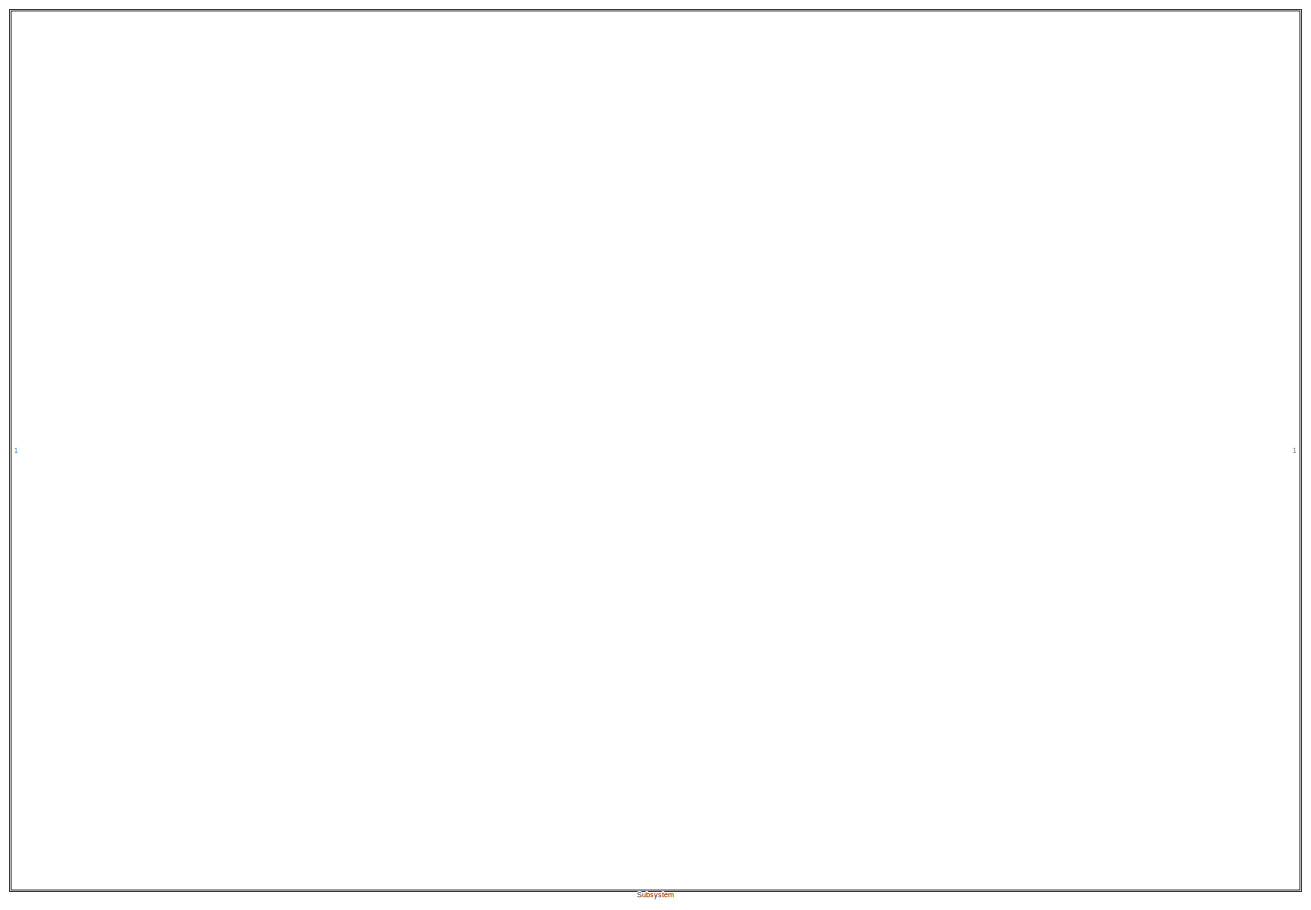
[diagram: root canvas - part 1/10, top left region]
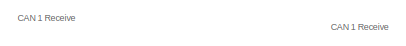
[diagram: root canvas - part 2/10, top center region]
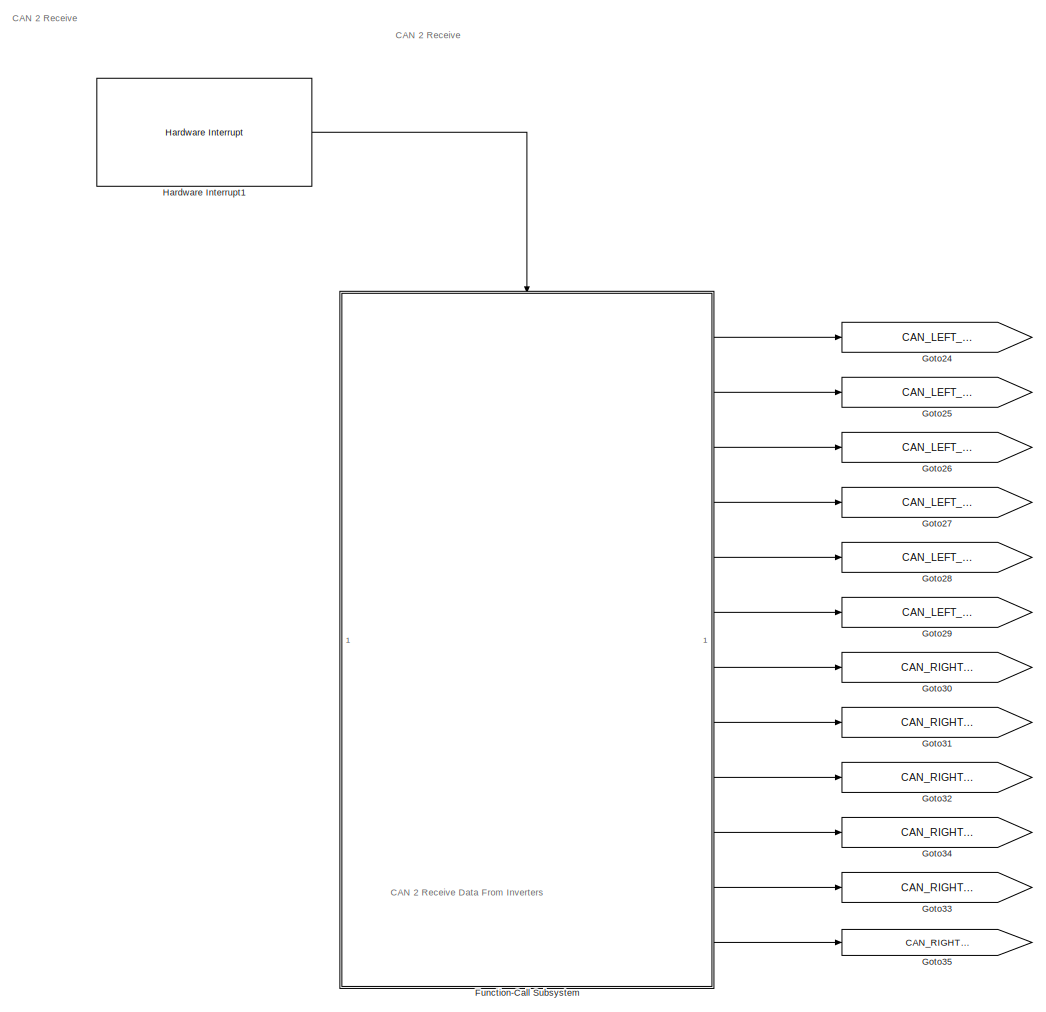
[diagram: root canvas - part 3/10, middle right region]
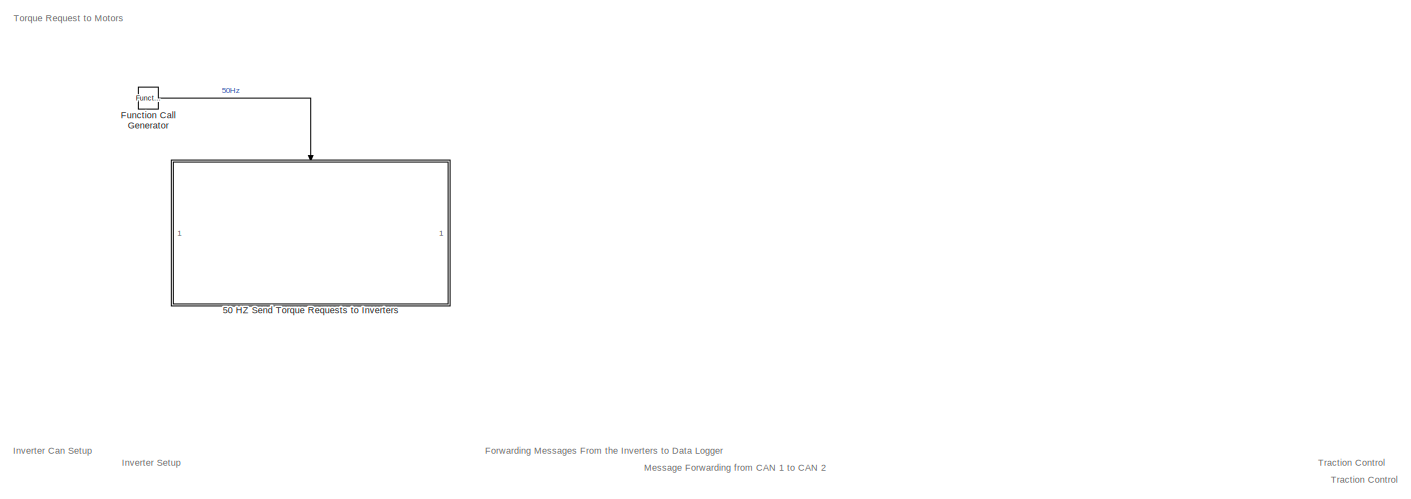
[diagram: root canvas - part 4/10, top right region]
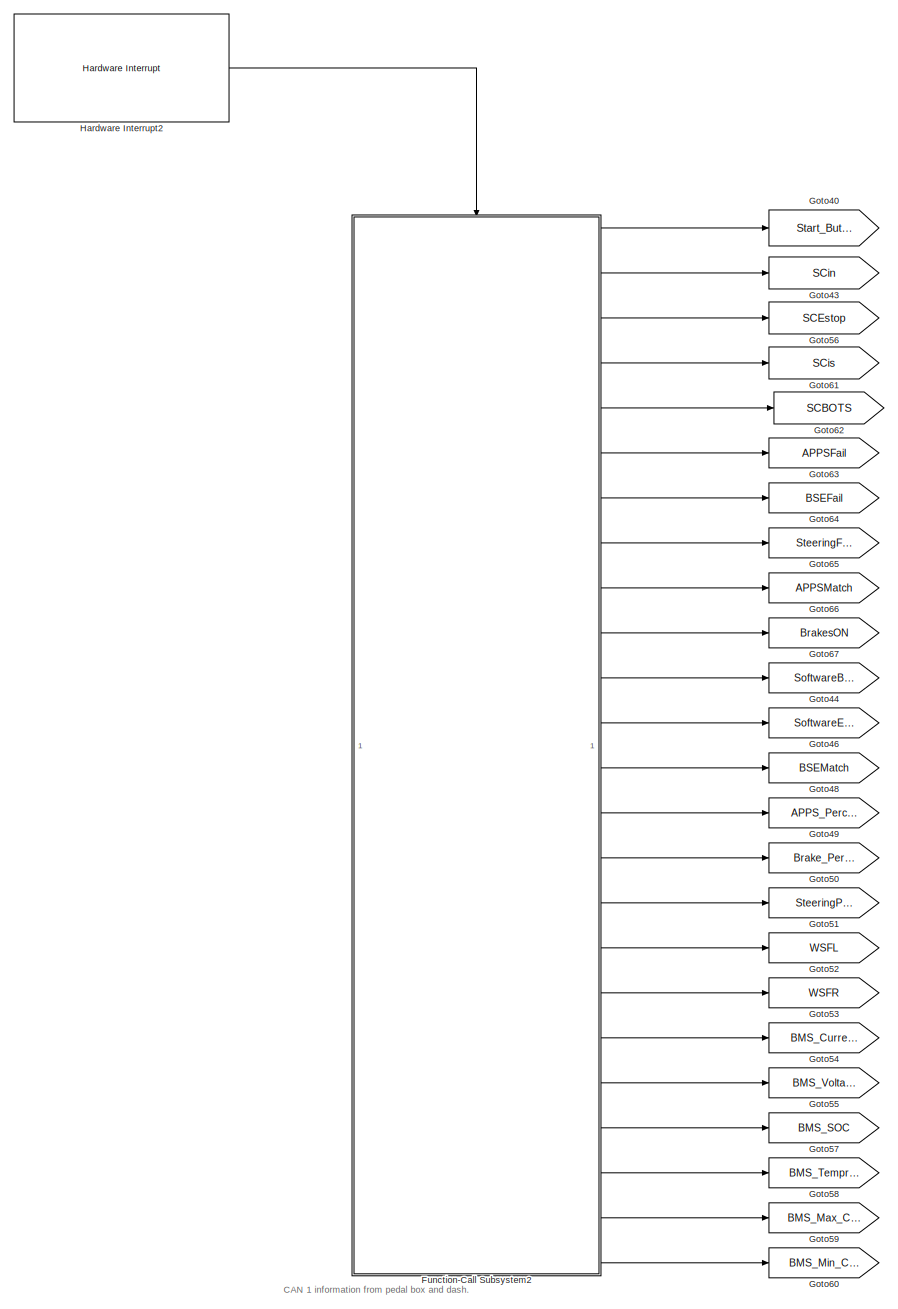
[diagram: root canvas - part 5/10, central region]
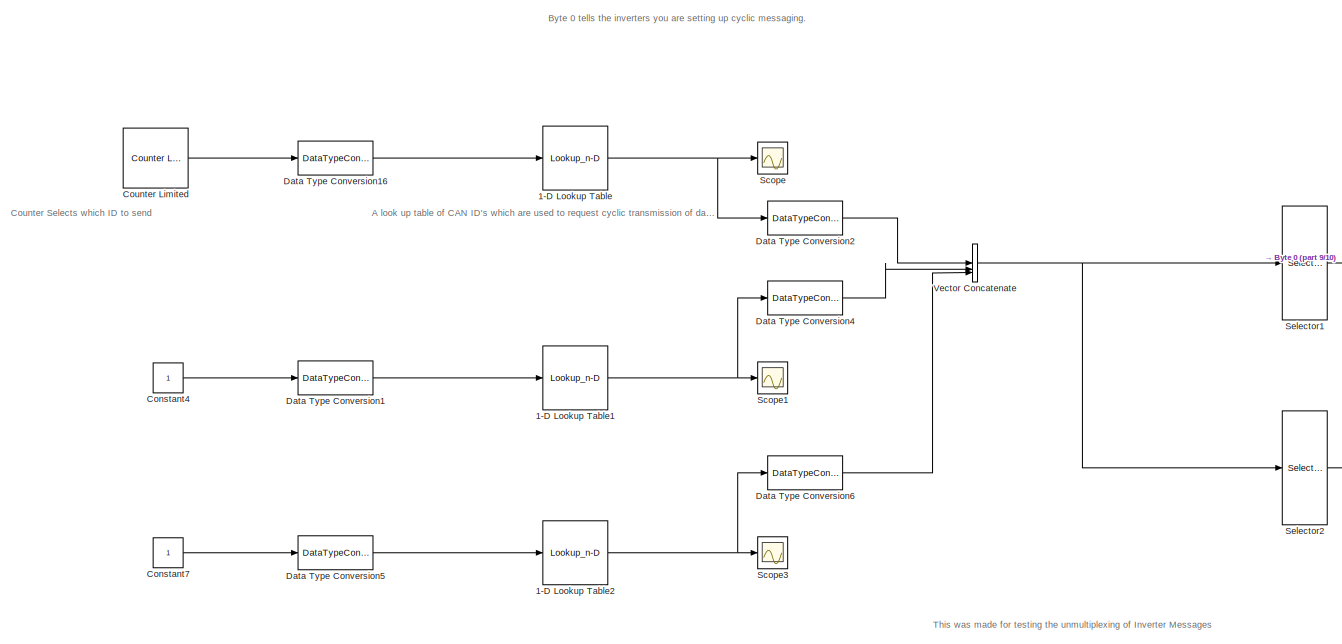
[diagram: root canvas - part 6/10, middle left region]
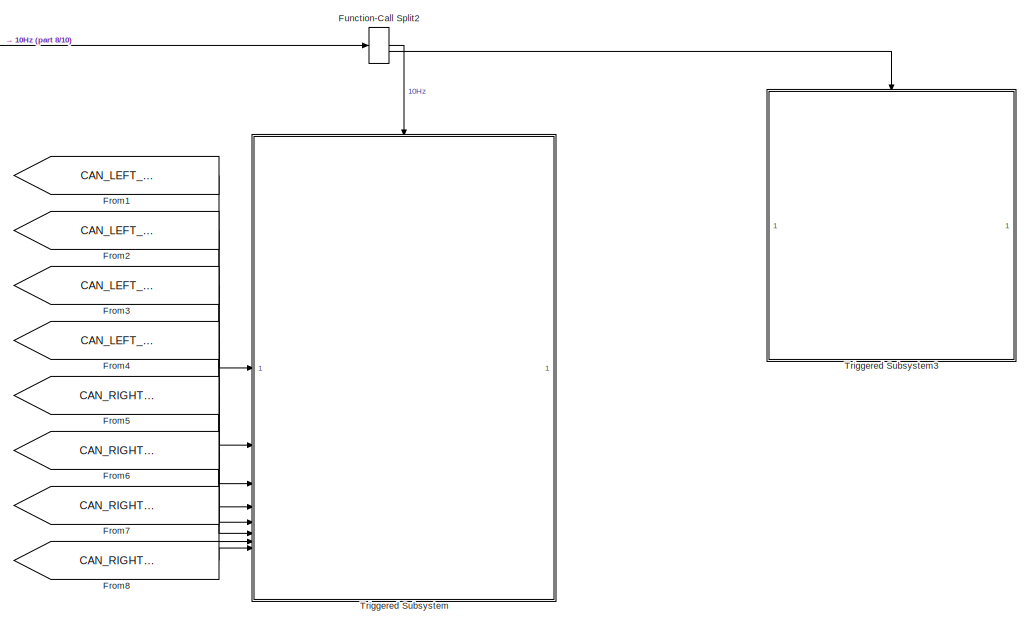
[diagram: root canvas - part 7/10, middle right region]
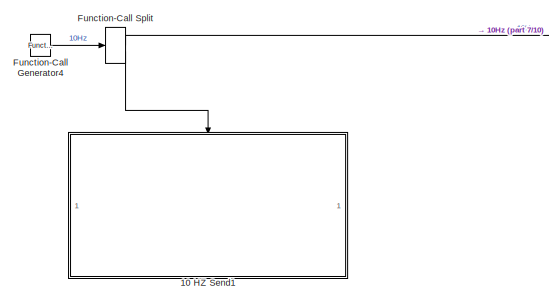
[diagram: root canvas - part 8/10, middle right region]
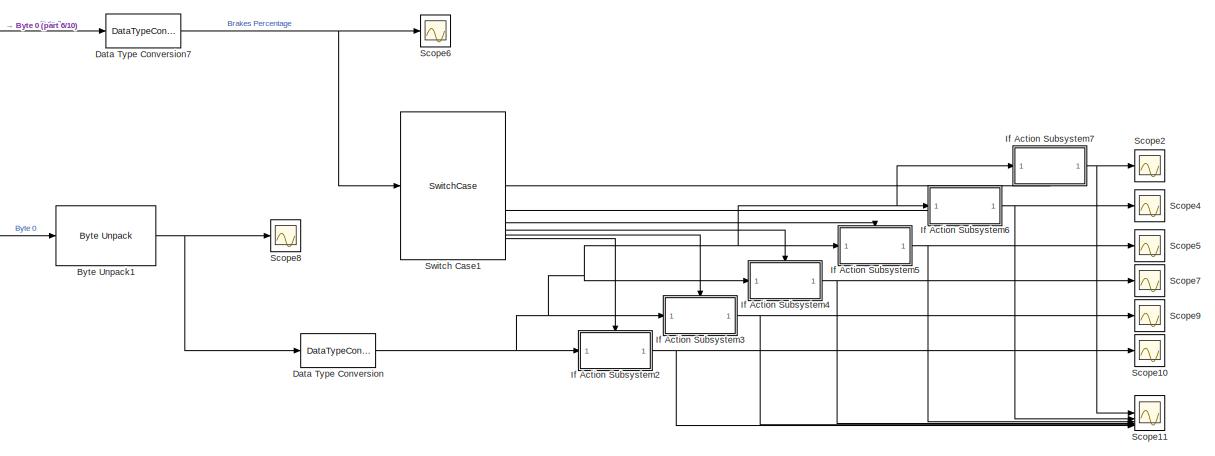
[diagram: root canvas - part 9/10, middle left region]
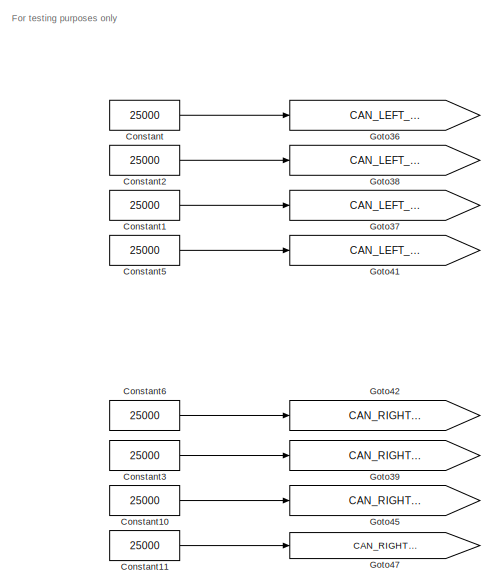
[diagram: root canvas - part 10/10, bottom right region]
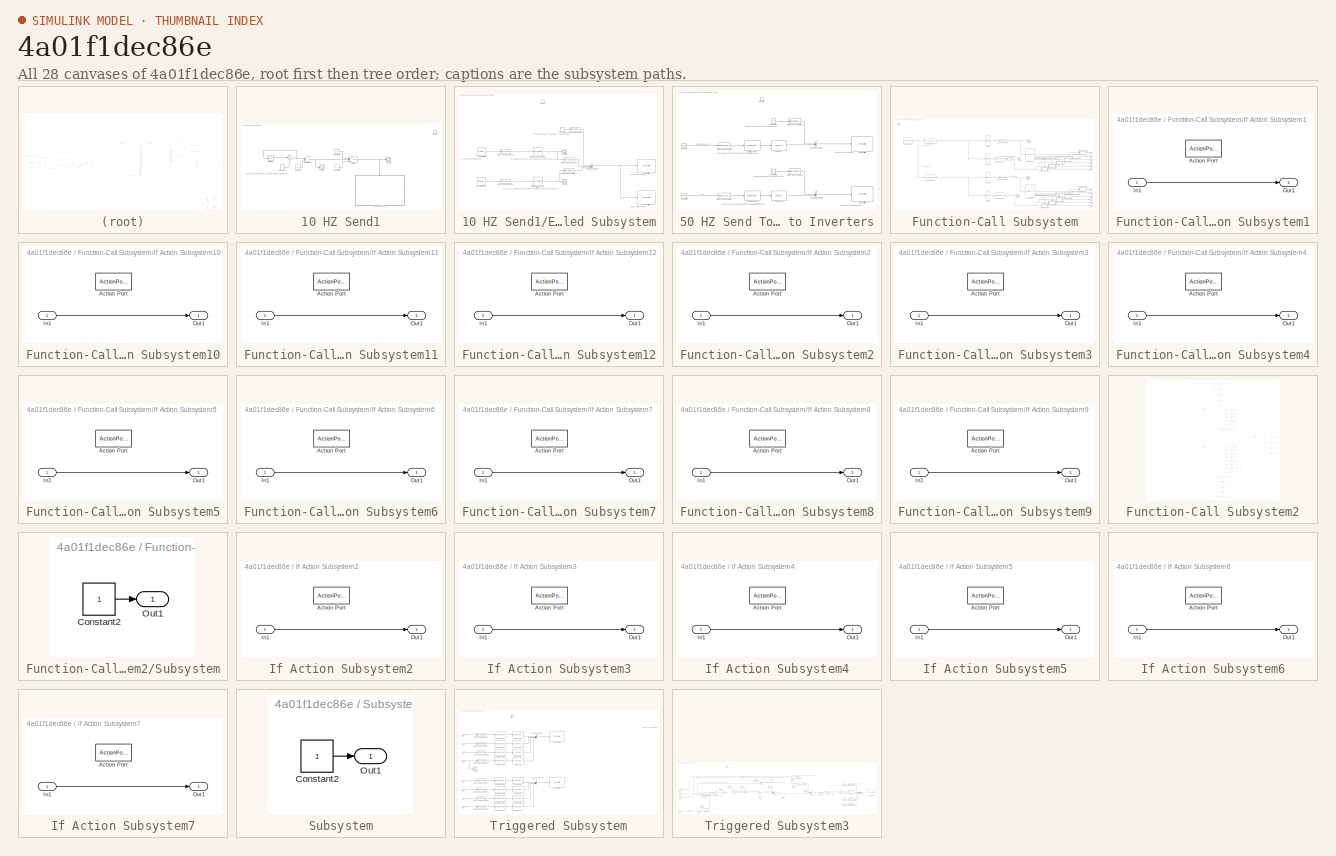
[diagram: thumbnail index - all 28 canvases of the model, root first then tree order]
MODEL slx_4a01f1dec86e
KIND model
CONFIG AbsTol = auto
CONFIG EnableMultiTasking = on
CONFIG FixedStep = auto
CONFIG MaxStep = auto
CONFIG MinStep = auto
CONFIG RelTol = 1e-3
CONFIG SampleTimeConstraint = Unconstrained
CONFIG SolverName = FixedStepAuto
CONFIG StartTime = 0.0
CONFIG StopTime = 20
BLOCK [Lookup_n-D] 1-D Lookup Table
  BreakpointsForDimension1 = [0 1 2 3 4 5]
  Commented = on
  InputPortMap = u0
  InternalRulePriority = Speed
  InterpMethod = Nearest
  NumberOfTableDimensions = 1
  RndMeth = Simplest
  Table = [235 74 168 73 95 138]
BLOCK [Lookup_n-D] 1-D Lookup Table1
  BreakpointsForDimension1 = [0 1 2 3 4 5]
  Commented = on
  InputPortMap = u0
  InternalRulePriority = Speed
  InterpMethod = Nearest
  NumberOfTableDimensions = 1
  RndMeth = Simplest
  Table = [25 200 25 200 50 50]
BLOCK [Lookup_n-D] 1-D Lookup Table2
  BreakpointsForDimension1 = [0 1 2 3 4 5]
  Commented = on
  InputPortMap = u0
  InternalRulePriority = Speed
  InterpMethod = Nearest
  NumberOfTableDimensions = 1
  RndMeth = Simplest
  Table = [25 200 25 200 50 50]
BLOCK [SubSystem] 10 HZ Send1
  TreatAsAtomicUnit = on
BLOCK [Constant] 10 HZ Send1/Constant
BLOCK [Constant] 10 HZ Send1/Constant1
  Value = 0
BLOCK [Constant] 10 HZ Send1/Constant2
BLOCK [Constant] 10 HZ Send1/Constant3
  Value = 12
BLOCK [SubSystem] 10 HZ Send1/Enabled Subsystem
  TreatAsAtomicUnit = on
BLOCK [Constant] 10 HZ Send1/Enabled Subsystem/Constant4
  Value = 61
BLOCK [Reference] 10 HZ Send1/Enabled Subsystem/Counter Limited  REF=simulink/Sources/Counter
Limited
  SourceBlock = simulink/Sources/Counter\nLimited
  SourceType = Counter Limited
BLOCK [Reference] 10 HZ Send1/Enabled Subsystem/Counter Limited1  REF=simulink/Sources/Counter
Limited
  SourceBlock = simulink/Sources/Counter\nLimited
  SourceType = Counter Limited
BLOCK [DataTypeConversion] 10 HZ Send1/Enabled Subsystem/Data Type Conversion1
  OutDataTypeStr = double
  RndMeth = Floor
  SaturateOnIntegerOverflow = off
BLOCK [DataTypeConversion] 10 HZ Send1/Enabled Subsystem/Data Type Conversion16
  OutDataTypeStr = double
  RndMeth = Floor
  SaturateOnIntegerOverflow = off
BLOCK [DataTypeConversion] 10 HZ Send1/Enabled Subsystem/Data Type Conversion2
  OutDataTypeStr = uint8
  RndMeth = Floor
  SaturateOnIntegerOverflow = off
BLOCK [DataTypeConversion] 10 HZ Send1/Enabled Subsystem/Data Type Conversion3
  OutDataTypeStr = uint8
  RndMeth = Floor
  SaturateOnIntegerOverflow = off
BLOCK [DataTypeConversion] 10 HZ Send1/Enabled Subsystem/Data Type Conversion4
  OutDataTypeStr = uint8
  RndMeth = Floor
  SaturateOnIntegerOverflow = off
BLOCK [LookupNDDirect] 10 HZ Send1/Enabled Subsystem/Direct Lookup Table (n-D)
  NumberOfTableDimensions = 1
  Table = [235 74 168 73 95 138]
BLOCK [LookupNDDirect] 10 HZ Send1/Enabled Subsystem/Direct Lookup Table (n-D)1
  NumberOfTableDimensions = 1
  Table = [25 200 25 200 50 50]
BLOCK [EnablePort] 10 HZ Send1/Enabled Subsystem/Enable
BLOCK [Reference] 10 HZ Send1/Enabled Subsystem/FDCAN Write2  REF=stm32blockslib/FDCAN Write
  LibrarySourceBlock = stm32l5xxblockslib/FDCAN Write
  SourceBlock = stm32blockslib/FDCAN Write
  SourceType = stm32cube.blocks.FDCANWrite
BLOCK [Reference] 10 HZ Send1/Enabled Subsystem/FDCAN Write3  REF=stm32blockslib/FDCAN Write
  LibrarySourceBlock = stm32l5xxblockslib/FDCAN Write
  SourceBlock = stm32blockslib/FDCAN Write
  SourceType = stm32cube.blocks.FDCANWrite
BLOCK [Scope] 10 HZ Send1/Enabled Subsystem/Scope2
  Floating = off
  NumInputPorts = 1
  ScopeSpecificationString = Simulink.scopes.TimeScopeBlockCfg('CurrentConfiguration', extmgr.ConfigurationSet(extmgr.Configuration('Core','General UI',true),extmgr.Configuration('Core','Source UI',true),extmgr.Configuration('Sources','WiredSimulink',true,'DataLoggingVariableName','ScopeData2'),extmgr.Configuration('Visuals','Time Domain',true,'SerializedDisplays',{struct('MinYLimReal','52.75','MaxYLimReal','255.25','YLabelRe...<+1459ch>
BLOCK [Scope] 10 HZ Send1/Enabled Subsystem/Scope3
  Floating = off
  NumInputPorts = 1
  ScopeSpecificationString = Simulink.scopes.TimeScopeBlockCfg('CurrentConfiguration', extmgr.ConfigurationSet(extmgr.Configuration('Core','General UI',true),extmgr.Configuration('Core','Source UI',true),extmgr.Configuration('Sources','WiredSimulink',true,'DataLoggingVariableName','ScopeData3'),extmgr.Configuration('Visuals','Time Domain',true,'SerializedDisplays',{struct('MinYLimReal','52.75','MaxYLimReal','255.25','YLabelRe...<+1450ch>
BLOCK [Concatenate] 10 HZ Send1/Enabled Subsystem/Vector Concatenate
  NumInputs = 3
BLOCK [RelationalOperator] 10 HZ Send1/GreaterThan
  InputSameDT = off
  Operator = >
  OutDataTypeStr = boolean
  RndMeth = Simplest
BLOCK [Scope] 10 HZ Send1/Scope
  Floating = off
  NumInputPorts = 1
  ScopeSpecificationString = Simulink.scopes.TimeScopeBlockCfg('CurrentConfiguration', extmgr.ConfigurationSet(extmgr.Configuration('Core','General UI',true),extmgr.Configuration('Core','Source UI',true),extmgr.Configuration('Sources','WiredSimulink',true,'DataLoggingVariableName','ScopeData2'),extmgr.Configuration('Visuals','Time Domain',true,'SerializedDisplays',{struct('MinYLimReal','-0.125','MaxYLimReal','1.125','YLabelRe...<+1442ch>
BLOCK [Scope] 10 HZ Send1/Scope1
  Floating = off
  NumInputPorts = 1
  ScopeSpecificationString = Simulink.scopes.TimeScopeBlockCfg('CurrentConfiguration', extmgr.ConfigurationSet(extmgr.Configuration('Core','General UI',true),extmgr.Configuration('Core','Source UI',true),extmgr.Configuration('Sources','WiredSimulink',true,'DataLoggingVariableName','ScopeData3'),extmgr.Configuration('Visuals','Time Domain',true,'SerializedDisplays',{struct('MinYLimReal','-0.125','MaxYLimReal','1.125','YLabelRe...<+1447ch>
BLOCK [Sum] 10 HZ Send1/Sum
  Inputs = |++
BLOCK [Switch] 10 HZ Send1/Switch
  Criteria = u2 > Threshold
  InputSameDT = off
  SaturateOnIntegerOverflow = off
BLOCK [UnitDelay] 10 HZ Send1/Unit Delay
  HasFrameUpgradeWarning = on
  SampleTime = -1
BLOCK [TriggerPort] 10 HZ Send1/function
  StatesWhenEnabling = held
  TriggerType = function-call
  VariantControl = (inherit)
BLOCK [SubSystem] 50 HZ Send Torque Requests to Inverters
  TreatAsAtomicUnit = on
BLOCK [Reference] 50 HZ Send Torque Requests to Inverters/Byte Pack  REF=stmutilitieslib/Byte Pack
  SourceBlock = stmutilitieslib/Byte Pack
  SourceType = Byte pack
BLOCK [Reference] 50 HZ Send Torque Requests to Inverters/Byte Pack1  REF=stmutilitieslib/Byte Pack
  SourceBlock = stmutilitieslib/Byte Pack
  SourceType = Byte pack
BLOCK [Reference] 50 HZ Send Torque Requests to Inverters/Byte Reversal  REF=stmutilitieslib/Byte Reversal
  SourceBlock = stmutilitieslib/Byte Reversal
  SourceType = Byte Reversal
BLOCK [Reference] 50 HZ Send Torque Requests to Inverters/Byte Reversal1  REF=stmutilitieslib/Byte Reversal
  SourceBlock = stmutilitieslib/Byte Reversal
  SourceType = Byte Reversal
BLOCK [Constant] 50 HZ Send Torque Requests to Inverters/Constant
  Value = 25000
BLOCK [Constant] 50 HZ Send Torque Requests to Inverters/Constant1
  Value = 144
BLOCK [Constant] 50 HZ Send Torque Requests to Inverters/Constant2
  Value = 25000
BLOCK [Constant] 50 HZ Send Torque Requests to Inverters/Constant3
  Value = 144
BLOCK [DataTypeConversion] 50 HZ Send Torque Requests to Inverters/Data Type Conversion
  OutDataTypeStr = uint16
  RndMeth = Floor
  SaturateOnIntegerOverflow = off
BLOCK [DataTypeConversion] 50 HZ Send Torque Requests to Inverters/Data Type Conversion1
  OutDataTypeStr = uint8
  RndMeth = Floor
  SaturateOnIntegerOverflow = off
BLOCK [DataTypeConversion] 50 HZ Send Torque Requests to Inverters/Data Type Conversion2
  OutDataTypeStr = uint16
  RndMeth = Floor
  SaturateOnIntegerOverflow = off
BLOCK [DataTypeConversion] 50 HZ Send Torque Requests to Inverters/Data Type Conversion3
  OutDataTypeStr = uint8
  RndMeth = Floor
  SaturateOnIntegerOverflow = off
BLOCK [Reference] 50 HZ Send Torque Requests to Inverters/FDCAN Write1  REF=stm32blockslib/FDCAN Write
  LibrarySourceBlock = stm32l5xxblockslib/FDCAN Write
  SourceBlock = stm32blockslib/FDCAN Write
  SourceType = stm32cube.blocks.FDCANWrite
BLOCK [Reference] 50 HZ Send Torque Requests to Inverters/FDCAN Write3  REF=stm32blockslib/FDCAN Write
  LibrarySourceBlock = stm32l5xxblockslib/FDCAN Write
  SourceBlock = stm32blockslib/FDCAN Write
  SourceType = stm32cube.blocks.FDCANWrite
BLOCK [Concatenate] 50 HZ Send Torque Requests to Inverters/Vector Concatenate
BLOCK [Concatenate] 50 HZ Send Torque Requests to Inverters/Vector Concatenate1
BLOCK [TriggerPort] 50 HZ Send Torque Requests to Inverters/function
  StatesWhenEnabling = held
  TriggerType = function-call
  VariantControl = (inherit)
BLOCK [Reference] Byte Unpack1  REF=stmutilitieslib/Byte Unpack
  Commented = on
  SourceBlock = stmutilitieslib/Byte Unpack
  SourceType = Byte Unpack
BLOCK [Constant] Constant
  Commented = on
  Value = 25000
BLOCK [Constant] Constant1
  Commented = on
  Value = 25000
BLOCK [Constant] Constant10
  Commented = on
  Value = 25000
BLOCK [Constant] Constant11
  Commented = on
  Value = 25000
BLOCK [Constant] Constant2
  Commented = on
  Value = 25000
BLOCK [Constant] Constant3
  Commented = on
  Value = 25000
BLOCK [Constant] Constant4
  Commented = on
BLOCK [Constant] Constant5
  Commented = on
  Value = 25000
BLOCK [Constant] Constant6
  Commented = on
  Value = 25000
BLOCK [Constant] Constant7
  Commented = on
BLOCK [Reference] Counter Limited  REF=simulink/Sources/Counter
Limited
  Commented = on
  SourceBlock = simulink/Sources/Counter\nLimited
  SourceType = Counter Limited
BLOCK [DataTypeConversion] Data Type Conversion
  Commented = on
  OutDataTypeStr = uint16
  RndMeth = Floor
  SaturateOnIntegerOverflow = off
BLOCK [DataTypeConversion] Data Type Conversion1
  Commented = on
  OutDataTypeStr = double
  RndMeth = Floor
  SaturateOnIntegerOverflow = off
BLOCK [DataTypeConversion] Data Type Conversion16
  Commented = on
  OutDataTypeStr = double
  RndMeth = Floor
  SaturateOnIntegerOverflow = off
BLOCK [DataTypeConversion] Data Type Conversion2
  Commented = on
  OutDataTypeStr = uint8
  RndMeth = Floor
  SaturateOnIntegerOverflow = off
BLOCK [DataTypeConversion] Data Type Conversion4
  Commented = on
  OutDataTypeStr = uint8
  RndMeth = Floor
  SaturateOnIntegerOverflow = off
BLOCK [DataTypeConversion] Data Type Conversion5
  Commented = on
  OutDataTypeStr = double
  RndMeth = Floor
  SaturateOnIntegerOverflow = off
BLOCK [DataTypeConversion] Data Type Conversion6
  Commented = on
  OutDataTypeStr = uint8
  RndMeth = Floor
  SaturateOnIntegerOverflow = off
BLOCK [DataTypeConversion] Data Type Conversion7
  Commented = on
  OutDataTypeStr = double
  RndMeth = Floor
  SaturateOnIntegerOverflow = off
BLOCK [From] From1
  GotoTag = CAN_LEFT_Inverter_Bus_Voltage
BLOCK [From] From2
  GotoTag = CAN_LEFT_Inverter_Motor_Speed
BLOCK [From] From3
  GotoTag = CAN_LEFT_Inverter_Motor_Current
BLOCK [From] From4
  GotoTag = CAN_LEFT_Inverter_Motor_Voltage
BLOCK [From] From5
  GotoTag = CAN_RIGHT_Inverter_Bus_Voltage
BLOCK [From] From6
  GotoTag = CAN_RIGHT_Inverter_Motor_Speed
BLOCK [From] From7
  GotoTag = CAN_RIGHT_Inverter_Motor_Current
BLOCK [From] From8
  GotoTag = CAN_RIGHT_Inverter_Motor_Voltage
BLOCK [Reference] Function Call Generator  REF=simulink/Ports &
Subsystems/Function-Call
Generator
  SourceBlock = simulink/Ports &\nSubsystems/Function-Call\nGenerator
  SourceType = Function-Call Generator
BLOCK [Reference] Function-Call Generator4  REF=simulink/Ports &
Subsystems/Function-Call
Generator
  SourceBlock = simulink/Ports &\nSubsystems/Function-Call\nGenerator
  SourceType = Function-Call Generator
BLOCK [FunctionCallSplit] Function-Call Split
  IconShape = distinctive
  NumOutputPorts = 2
  OutputPortLayout = default
BLOCK [FunctionCallSplit] Function-Call Split2
  IconShape = distinctive
  NumOutputPorts = 2
BLOCK [SubSystem] Function-Call Subsystem
  TreatAsAtomicUnit = on
BLOCK [Reference] Function-Call Subsystem/Byte Unpack  REF=stmutilitieslib/Byte Unpack
  SourceBlock = stmutilitieslib/Byte Unpack
  SourceType = Byte Unpack
BLOCK [Reference] Function-Call Subsystem/Byte Unpack1  REF=stmutilitieslib/Byte Unpack
  SourceBlock = stmutilitieslib/Byte Unpack
  SourceType = Byte Unpack
BLOCK [Reference] Function-Call Subsystem/CAN FD Unpack1  REF=canfdmsglib/CAN FD Unpack
  LibrarySourceBlock = stmutilitieslib/CAN FD Unpack
  SourceBlock = canfdmsglib/CAN FD Unpack
  SourceType = CAN FD Unpack
BLOCK [Reference] Function-Call Subsystem/CAN FD Unpack2  REF=canfdmsglib/CAN FD Unpack
  LibrarySourceBlock = stmutilitieslib/CAN FD Unpack
  SourceBlock = canfdmsglib/CAN FD Unpack
  SourceType = CAN FD Unpack
BLOCK [DataTypeConversion] Function-Call Subsystem/Data Type Conversion
  OutDataTypeStr = uint16
  RndMeth = Floor
  SaturateOnIntegerOverflow = off
BLOCK [DataTypeConversion] Function-Call Subsystem/Data Type Conversion1
  OutDataTypeStr = double
  RndMeth = Floor
  SaturateOnIntegerOverflow = off
BLOCK [DataTypeConversion] Function-Call Subsystem/Data Type Conversion3
  OutDataTypeStr = double
  RndMeth = Floor
  SaturateOnIntegerOverflow = off
BLOCK [Reference] Function-Call Subsystem/FDCAN Read1  REF=stm32blockslib/FDCAN Read
  LibrarySourceBlock = stm32l5xxblockslib/FDCAN Read
  SourceBlock = stm32blockslib/FDCAN Read
  SourceType = stm32cube.blocks.FDCANRead
BLOCK [SubSystem] Function-Call Subsystem/If Action Subsystem1
  TreatAsAtomicUnit = on
BLOCK [ActionPort] Function-Call Subsystem/If Action Subsystem1/Action Port
  ActionPortLabel = case [ 138 ]:
BLOCK [Inport] Function-Call Subsystem/If Action Subsystem1/In1
BLOCK [Outport] Function-Call Subsystem/If Action Subsystem1/Out1
BLOCK [SubSystem] Function-Call Subsystem/If Action Subsystem10
  TreatAsAtomicUnit = on
BLOCK [ActionPort] Function-Call Subsystem/If Action Subsystem10/Action Port
  ActionPortLabel = case [ 168 ]:
BLOCK [Inport] Function-Call Subsystem/If Action Subsystem10/In1
BLOCK [Outport] Function-Call Subsystem/If Action Subsystem10/Out1
BLOCK [SubSystem] Function-Call Subsystem/If Action Subsystem11
  TreatAsAtomicUnit = on
BLOCK [ActionPort] Function-Call Subsystem/If Action Subsystem11/Action Port
  ActionPortLabel = case [ 74 ]:
BLOCK [Inport] Function-Call Subsystem/If Action Subsystem11/In1
BLOCK [Outport] Function-Call Subsystem/If Action Subsystem11/Out1
BLOCK [SubSystem] Function-Call Subsystem/If Action Subsystem12
  TreatAsAtomicUnit = on
BLOCK [ActionPort] Function-Call Subsystem/If Action Subsystem12/Action Port
  ActionPortLabel = case [ 235 ]:
BLOCK [Inport] Function-Call Subsystem/If Action Subsystem12/In1
BLOCK [Outport] Function-Call Subsystem/If Action Subsystem12/Out1
BLOCK [SubSystem] Function-Call Subsystem/If Action Subsystem2
  TreatAsAtomicUnit = on
BLOCK [ActionPort] Function-Call Subsystem/If Action Subsystem2/Action Port
  ActionPortLabel = case [ 95 ]:
BLOCK [Inport] Function-Call Subsystem/If Action Subsystem2/In1
BLOCK [Outport] Function-Call Subsystem/If Action Subsystem2/Out1
BLOCK [SubSystem] Function-Call Subsystem/If Action Subsystem3
  TreatAsAtomicUnit = on
BLOCK [ActionPort] Function-Call Subsystem/If Action Subsystem3/Action Port
  ActionPortLabel = case [ 73 ]:
BLOCK [Inport] Function-Call Subsystem/If Action Subsystem3/In1
BLOCK [Outport] Function-Call Subsystem/If Action Subsystem3/Out1
BLOCK [SubSystem] Function-Call Subsystem/If Action Subsystem4
  TreatAsAtomicUnit = on
BLOCK [ActionPort] Function-Call Subsystem/If Action Subsystem4/Action Port
  ActionPortLabel = case [ 168 ]:
BLOCK [Inport] Function-Call Subsystem/If Action Subsystem4/In1
BLOCK [Outport] Function-Call Subsystem/If Action Subsystem4/Out1
BLOCK [SubSystem] Function-Call Subsystem/If Action Subsystem5
  TreatAsAtomicUnit = on
BLOCK [ActionPort] Function-Call Subsystem/If Action Subsystem5/Action Port
  ActionPortLabel = case [ 74 ]:
BLOCK [Inport] Function-Call Subsystem/If Action Subsystem5/In1
BLOCK [Outport] Function-Call Subsystem/If Action Subsystem5/Out1
BLOCK [SubSystem] Function-Call Subsystem/If Action Subsystem6
  TreatAsAtomicUnit = on
BLOCK [ActionPort] Function-Call Subsystem/If Action Subsystem6/Action Port
  ActionPortLabel = case [ 235 ]:
BLOCK [Inport] Function-Call Subsystem/If Action Subsystem6/In1
BLOCK [Outport] Function-Call Subsystem/If Action Subsystem6/Out1
BLOCK [SubSystem] Function-Call Subsystem/If Action Subsystem7
  TreatAsAtomicUnit = on
BLOCK [ActionPort] Function-Call Subsystem/If Action Subsystem7/Action Port
  ActionPortLabel = case [ 138 ]:
BLOCK [Inport] Function-Call Subsystem/If Action Subsystem7/In1
BLOCK [Outport] Function-Call Subsystem/If Action Subsystem7/Out1
BLOCK [SubSystem] Function-Call Subsystem/If Action Subsystem8
  TreatAsAtomicUnit = on
BLOCK [ActionPort] Function-Call Subsystem/If Action Subsystem8/Action Port
  ActionPortLabel = case [ 95 ]:
BLOCK [Inport] Function-Call Subsystem/If Action Subsystem8/In1
BLOCK [Outport] Function-Call Subsystem/If Action Subsystem8/Out1
BLOCK [SubSystem] Function-Call Subsystem/If Action Subsystem9
  TreatAsAtomicUnit = on
BLOCK [ActionPort] Function-Call Subsystem/If Action Subsystem9/Action Port
  ActionPortLabel = case [ 73 ]:
BLOCK [Inport] Function-Call Subsystem/If Action Subsystem9/In1
BLOCK [Outport] Function-Call Subsystem/If Action Subsystem9/Out1
BLOCK [Outport] Function-Call Subsystem/Out1
BLOCK [Outport] Function-Call Subsystem/Out10
  Port = 10
BLOCK [Outport] Function-Call Subsystem/Out11
  Port = 11
BLOCK [Outport] Function-Call Subsystem/Out12
  Port = 12
BLOCK [Outport] Function-Call Subsystem/Out2
  Port = 2
BLOCK [Outport] Function-Call Subsystem/Out3
  Port = 3
BLOCK [Outport] Function-Call Subsystem/Out4
  Port = 4
BLOCK [Outport] Function-Call Subsystem/Out5
  Port = 5
BLOCK [Outport] Function-Call Subsystem/Out6
  Port = 6
BLOCK [Outport] Function-Call Subsystem/Out7
  Port = 7
BLOCK [Outport] Function-Call Subsystem/Out8
  Port = 8
BLOCK [Outport] Function-Call Subsystem/Out9
  Port = 9
BLOCK [Scope] Function-Call Subsystem/Scope1
  Floating = off
  NumInputPorts = 1
  ScopeSpecificationString = Simulink.scopes.TimeScopeBlockCfg('CurrentConfiguration', extmgr.ConfigurationSet(extmgr.Configuration('Core','General UI',true),extmgr.Configuration('Core','Source UI',true),extmgr.Configuration('Sources','WiredSimulink',true,'DataLoggingVariableName','ScopeData14'),extmgr.Configuration('Visuals','Time Domain',true,'SerializedDisplays',{struct('MinYLimReal','52.75','MaxYLimReal','255.25','YLabelR...<+1452ch>
BLOCK [Scope] Function-Call Subsystem/Scope2
  Floating = off
  NumInputPorts = 1
  ScopeSpecificationString = Simulink.scopes.TimeScopeBlockCfg('CurrentConfiguration', extmgr.ConfigurationSet(extmgr.Configuration('Core','General UI',true),extmgr.Configuration('Core','Source UI',true),extmgr.Configuration('Sources','WiredSimulink',true,'DataLoggingVariableName','ScopeData15'),extmgr.Configuration('Visuals','Time Domain',true,'SerializedDisplays',{struct('MinYLimReal','-6425.00000','MaxYLimReal','57825.0000...<+1486ch>
BLOCK [Scope] Function-Call Subsystem/Scope4
  Floating = off
  NumInputPorts = 1
  ScopeSpecificationString = Simulink.scopes.TimeScopeBlockCfg('CurrentConfiguration', extmgr.ConfigurationSet(extmgr.Configuration('Core','General UI',true),extmgr.Configuration('Core','Source UI',true),extmgr.Configuration('Sources','WiredSimulink',true,'DataLoggingVariableName','ScopeData11'),extmgr.Configuration('Visuals','Time Domain',true,'SerializedDisplays',{struct('MinYLimReal','52.75','MaxYLimReal','255.25','YLabelR...<+1452ch>
BLOCK [Scope] Function-Call Subsystem/Scope7
  Floating = off
  NumInputPorts = 1
  ScopeSpecificationString = Simulink.scopes.TimeScopeBlockCfg('CurrentConfiguration', extmgr.ConfigurationSet(extmgr.Configuration('Core','General UI',true),extmgr.Configuration('Core','Source UI',true),extmgr.Configuration('Sources','WiredSimulink',true,'DataLoggingVariableName','ScopeData13'),extmgr.Configuration('Visuals','Time Domain',true,'SerializedDisplays',{struct('MinYLimReal','-6425.00000','MaxYLimReal','57825.0000...<+1486ch>
BLOCK [Selector] Function-Call Subsystem/Selector
  IndexOptions = Index vector (dialog)
  Indices = [1 ]
  InputPortWidth = 3
  OutputSizes = 1
BLOCK [Selector] Function-Call Subsystem/Selector1
  IndexOptions = Index vector (dialog)
  Indices = [1 ]
  InputPortWidth = 3
  OutputSizes = 1
BLOCK [Selector] Function-Call Subsystem/Selector2
  IndexOptions = Index vector (dialog)
  Indices = [2 3 ]
  InputPortWidth = 3
  OutputSizes = 1
BLOCK [Selector] Function-Call Subsystem/Selector6
  IndexOptions = Index vector (dialog)
  Indices = [2 3 ]
  InputPortWidth = 3
  OutputSizes = 1
BLOCK [SwitchCase] Function-Call Subsystem/Switch Case
  CaseConditions = {235, 74, 168, 73, 95, 138}
BLOCK [SwitchCase] Function-Call Subsystem/Switch Case1
  CaseConditions = {235, 74, 168, 73, 95, 138}
BLOCK [TriggerPort] Function-Call Subsystem/function
  StatesWhenEnabling = held
  TriggerType = function-call
  VariantControl = (inherit)
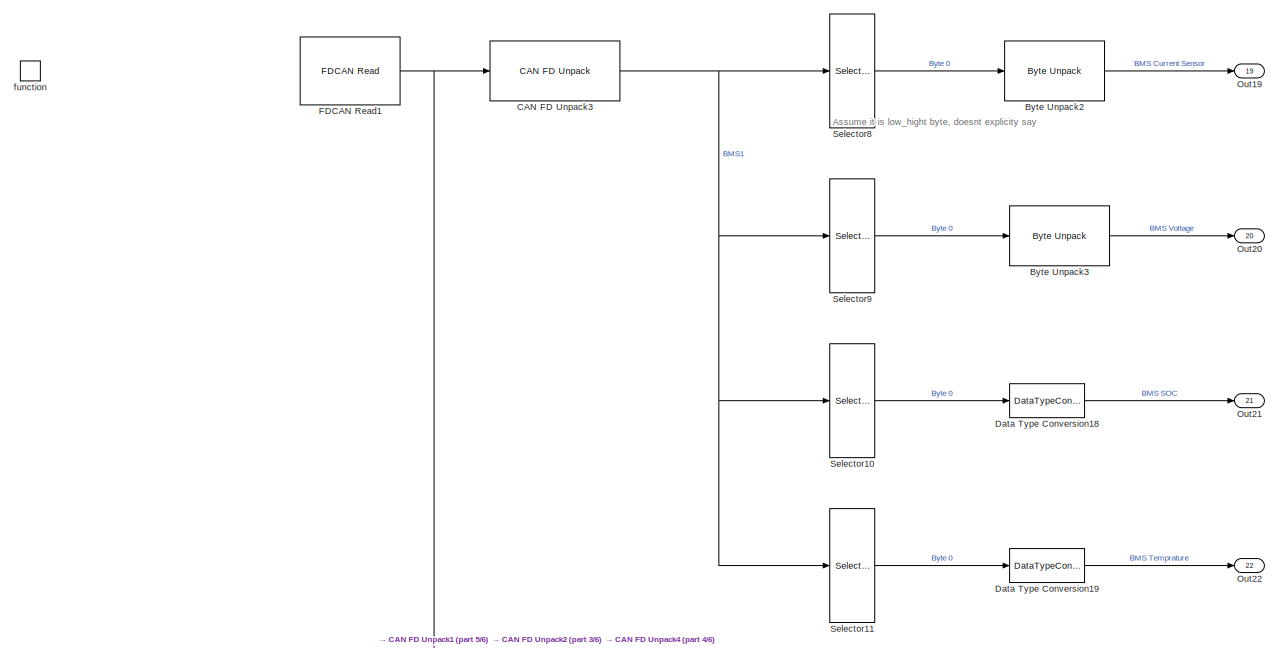
[diagram: Function-Call Subsystem2 - part 1/6, top center region]
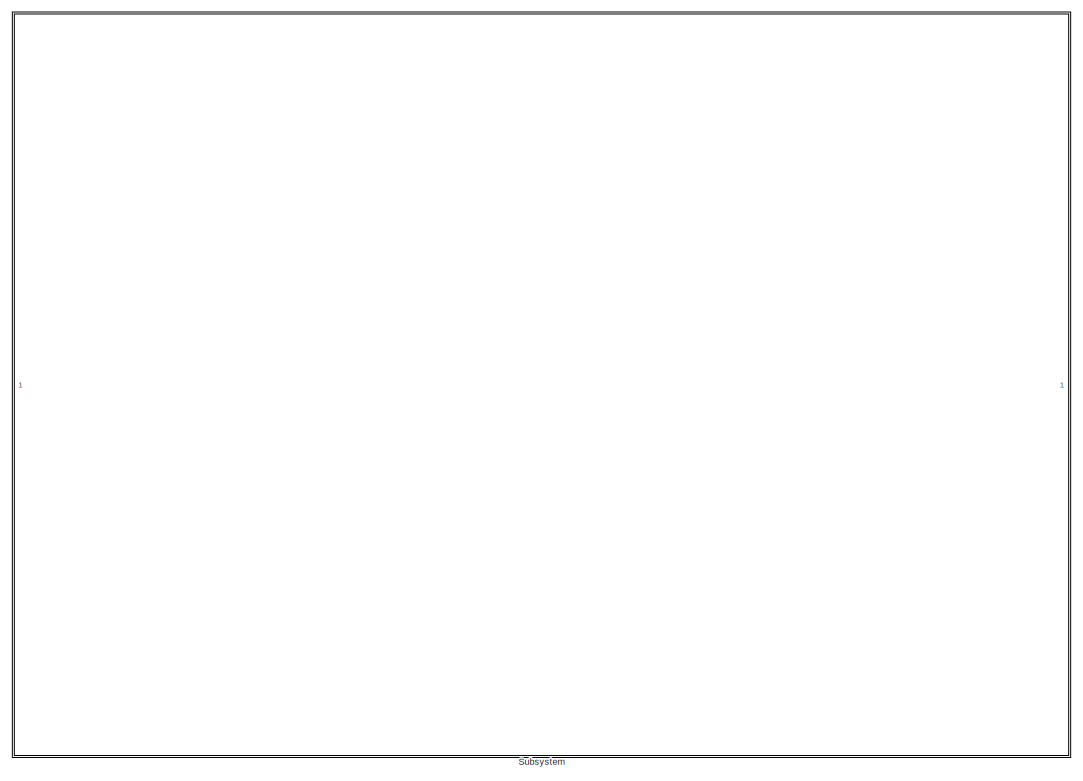
[diagram: Function-Call Subsystem2 - part 2/6, top left region]
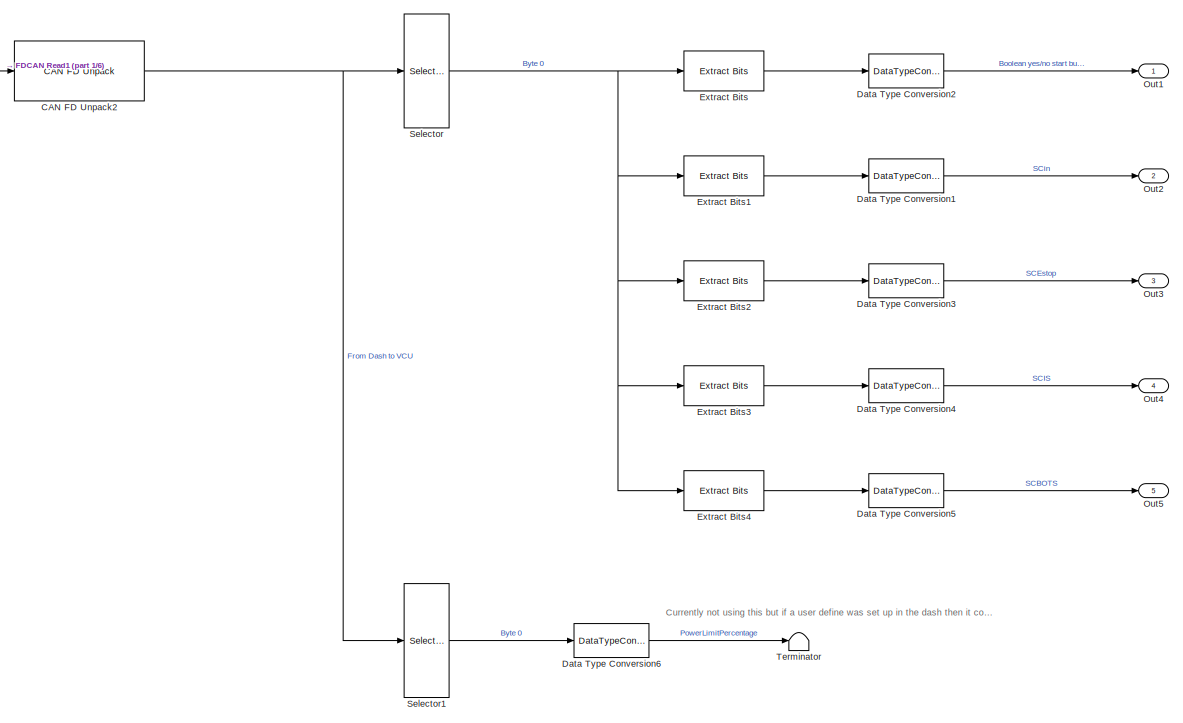
[diagram: Function-Call Subsystem2 - part 3/6, top center region]
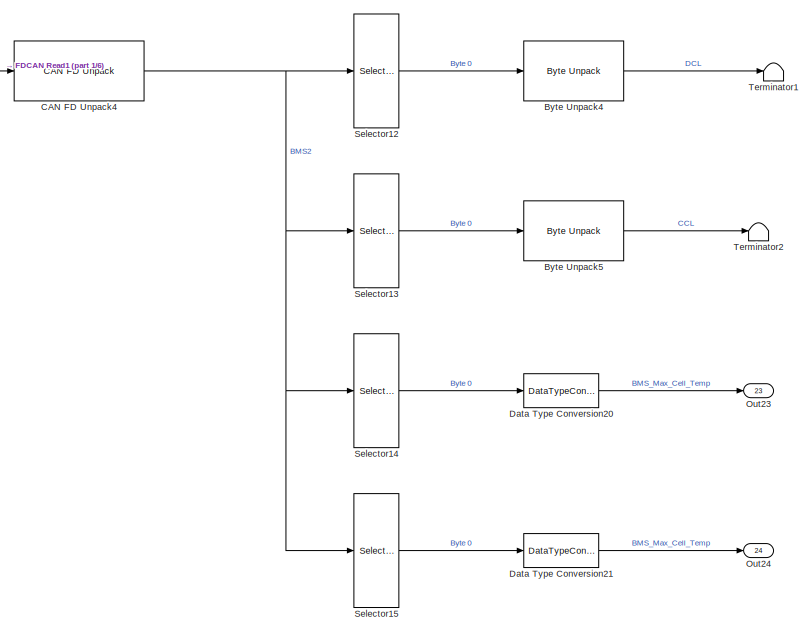
[diagram: Function-Call Subsystem2 - part 4/6, middle right region]
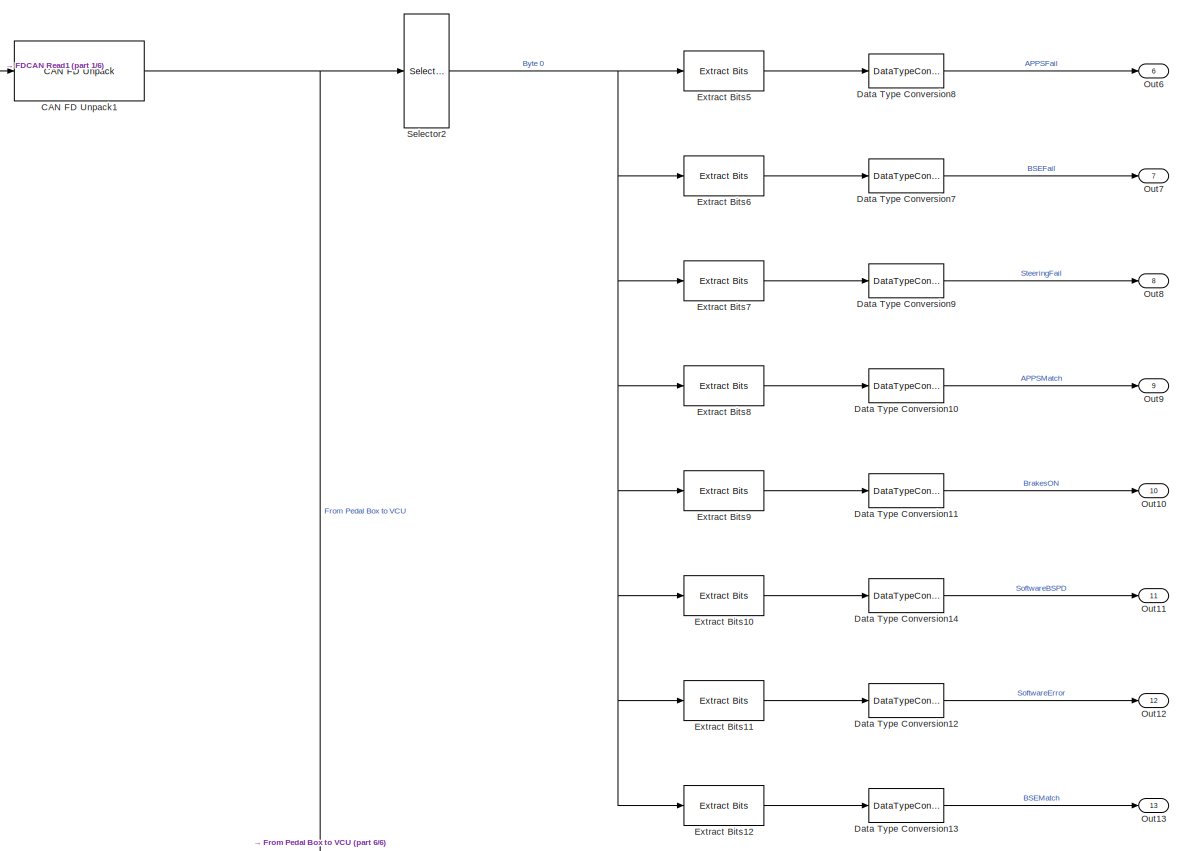
[diagram: Function-Call Subsystem2 - part 5/6, central region]
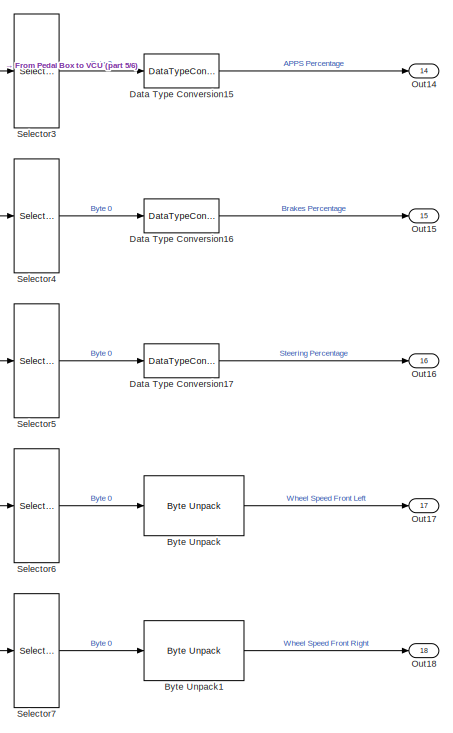
[diagram: Function-Call Subsystem2 - part 6/6, bottom center region]
BLOCK [SubSystem] Function-Call Subsystem2
  TreatAsAtomicUnit = on
BLOCK [Reference] Function-Call Subsystem2/Byte Unpack  REF=stmutilitieslib/Byte Unpack
  SourceBlock = stmutilitieslib/Byte Unpack
  SourceType = Byte Unpack
BLOCK [Reference] Function-Call Subsystem2/Byte Unpack1  REF=stmutilitieslib/Byte Unpack
  SourceBlock = stmutilitieslib/Byte Unpack
  SourceType = Byte Unpack
BLOCK [Reference] Function-Call Subsystem2/Byte Unpack2  REF=stmutilitieslib/Byte Unpack
  SourceBlock = stmutilitieslib/Byte Unpack
  SourceType = Byte Unpack
BLOCK [Reference] Function-Call Subsystem2/Byte Unpack3  REF=stmutilitieslib/Byte Unpack
  SourceBlock = stmutilitieslib/Byte Unpack
  SourceType = Byte Unpack
BLOCK [Reference] Function-Call Subsystem2/Byte Unpack4  REF=stmutilitieslib/Byte Unpack
  SourceBlock = stmutilitieslib/Byte Unpack
  SourceType = Byte Unpack
BLOCK [Reference] Function-Call Subsystem2/Byte Unpack5  REF=stmutilitieslib/Byte Unpack
  SourceBlock = stmutilitieslib/Byte Unpack
  SourceType = Byte Unpack
BLOCK [Reference] Function-Call Subsystem2/CAN FD Unpack1  REF=canfdmsglib/CAN FD Unpack
  LibrarySourceBlock = stmutilitieslib/CAN FD Unpack
  SourceBlock = canfdmsglib/CAN FD Unpack
  SourceType = CAN FD Unpack
BLOCK [Reference] Function-Call Subsystem2/CAN FD Unpack2  REF=canfdmsglib/CAN FD Unpack
  LibrarySourceBlock = stmutilitieslib/CAN FD Unpack
  SourceBlock = canfdmsglib/CAN FD Unpack
  SourceType = CAN FD Unpack
BLOCK [Reference] Function-Call Subsystem2/CAN FD Unpack3  REF=canfdmsglib/CAN FD Unpack
  LibrarySourceBlock = stmutilitieslib/CAN FD Unpack
  SourceBlock = canfdmsglib/CAN FD Unpack
  SourceType = CAN FD Unpack
BLOCK [Reference] Function-Call Subsystem2/CAN FD Unpack4  REF=canfdmsglib/CAN FD Unpack
  LibrarySourceBlock = stmutilitieslib/CAN FD Unpack
  SourceBlock = canfdmsglib/CAN FD Unpack
  SourceType = CAN FD Unpack
BLOCK [DataTypeConversion] Function-Call Subsystem2/Data Type Conversion1
  OutDataTypeStr = boolean
  RndMeth = Floor
  SaturateOnIntegerOverflow = off
BLOCK [DataTypeConversion] Function-Call Subsystem2/Data Type Conversion10
  OutDataTypeStr = boolean
  RndMeth = Floor
  SaturateOnIntegerOverflow = off
BLOCK [DataTypeConversion] Function-Call Subsystem2/Data Type Conversion11
  OutDataTypeStr = boolean
  RndMeth = Floor
  SaturateOnIntegerOverflow = off
BLOCK [DataTypeConversion] Function-Call Subsystem2/Data Type Conversion12
  OutDataTypeStr = boolean
  RndMeth = Floor
  SaturateOnIntegerOverflow = off
BLOCK [DataTypeConversion] Function-Call Subsystem2/Data Type Conversion13
  OutDataTypeStr = boolean
  RndMeth = Floor
  SaturateOnIntegerOverflow = off
BLOCK [DataTypeConversion] Function-Call Subsystem2/Data Type Conversion14
  OutDataTypeStr = boolean
  RndMeth = Floor
  SaturateOnIntegerOverflow = off
BLOCK [DataTypeConversion] Function-Call Subsystem2/Data Type Conversion15
  OutDataTypeStr = double
  RndMeth = Floor
  SaturateOnIntegerOverflow = off
BLOCK [DataTypeConversion] Function-Call Subsystem2/Data Type Conversion16
  OutDataTypeStr = double
  RndMeth = Floor
  SaturateOnIntegerOverflow = off
BLOCK [DataTypeConversion] Function-Call Subsystem2/Data Type Conversion17
  OutDataTypeStr = double
  RndMeth = Floor
  SaturateOnIntegerOverflow = off
BLOCK [DataTypeConversion] Function-Call Subsystem2/Data Type Conversion18
  OutDataTypeStr = double
  RndMeth = Floor
  SaturateOnIntegerOverflow = off
BLOCK [DataTypeConversion] Function-Call Subsystem2/Data Type Conversion19
  OutDataTypeStr = double
  RndMeth = Floor
  SaturateOnIntegerOverflow = off
BLOCK [DataTypeConversion] Function-Call Subsystem2/Data Type Conversion2
  OutDataTypeStr = boolean
  RndMeth = Floor
  SaturateOnIntegerOverflow = off
BLOCK [DataTypeConversion] Function-Call Subsystem2/Data Type Conversion20
  OutDataTypeStr = double
  RndMeth = Floor
  SaturateOnIntegerOverflow = off
BLOCK [DataTypeConversion] Function-Call Subsystem2/Data Type Conversion21
  OutDataTypeStr = double
  RndMeth = Floor
  SaturateOnIntegerOverflow = off
BLOCK [DataTypeConversion] Function-Call Subsystem2/Data Type Conversion3
  OutDataTypeStr = boolean
  RndMeth = Floor
  SaturateOnIntegerOverflow = off
BLOCK [DataTypeConversion] Function-Call Subsystem2/Data Type Conversion4
  OutDataTypeStr = boolean
  RndMeth = Floor
  SaturateOnIntegerOverflow = off
BLOCK [DataTypeConversion] Function-Call Subsystem2/Data Type Conversion5
  OutDataTypeStr = boolean
  RndMeth = Floor
  SaturateOnIntegerOverflow = off
BLOCK [DataTypeConversion] Function-Call Subsystem2/Data Type Conversion6
  OutDataTypeStr = uint8
  RndMeth = Floor
  SaturateOnIntegerOverflow = off
BLOCK [DataTypeConversion] Function-Call Subsystem2/Data Type Conversion7
  OutDataTypeStr = boolean
  RndMeth = Floor
  SaturateOnIntegerOverflow = off
BLOCK [DataTypeConversion] Function-Call Subsystem2/Data Type Conversion8
  OutDataTypeStr = boolean
  RndMeth = Floor
  SaturateOnIntegerOverflow = off
BLOCK [DataTypeConversion] Function-Call Subsystem2/Data Type Conversion9
  OutDataTypeStr = boolean
  RndMeth = Floor
  SaturateOnIntegerOverflow = off
BLOCK [Reference] Function-Call Subsystem2/Extract Bits  REF=simulink/Logic and Bit
Operations/Extract Bits
  SourceBlock = simulink/Logic and Bit\nOperations/Extract Bits
  SourceType = Extract Bits
BLOCK [Reference] Function-Call Subsystem2/Extract Bits1  REF=simulink/Logic and Bit
Operations/Extract Bits
  SourceBlock = simulink/Logic and Bit\nOperations/Extract Bits
  SourceType = Extract Bits
BLOCK [Reference] Function-Call Subsystem2/Extract Bits10  REF=simulink/Logic and Bit
Operations/Extract Bits
  SourceBlock = simulink/Logic and Bit\nOperations/Extract Bits
  SourceType = Extract Bits
BLOCK [Reference] Function-Call Subsystem2/Extract Bits11  REF=simulink/Logic and Bit
Operations/Extract Bits
  SourceBlock = simulink/Logic and Bit\nOperations/Extract Bits
  SourceType = Extract Bits
BLOCK [Reference] Function-Call Subsystem2/Extract Bits12  REF=simulink/Logic and Bit
Operations/Extract Bits
  SourceBlock = simulink/Logic and Bit\nOperations/Extract Bits
  SourceType = Extract Bits
BLOCK [Reference] Function-Call Subsystem2/Extract Bits2  REF=simulink/Logic and Bit
Operations/Extract Bits
  SourceBlock = simulink/Logic and Bit\nOperations/Extract Bits
  SourceType = Extract Bits
BLOCK [Reference] Function-Call Subsystem2/Extract Bits3  REF=simulink/Logic and Bit
Operations/Extract Bits
  SourceBlock = simulink/Logic and Bit\nOperations/Extract Bits
  SourceType = Extract Bits
BLOCK [Reference] Function-Call Subsystem2/Extract Bits4  REF=simulink/Logic and Bit
Operations/Extract Bits
  SourceBlock = simulink/Logic and Bit\nOperations/Extract Bits
  SourceType = Extract Bits
BLOCK [Reference] Function-Call Subsystem2/Extract Bits5  REF=simulink/Logic and Bit
Operations/Extract Bits
  SourceBlock = simulink/Logic and Bit\nOperations/Extract Bits
  SourceType = Extract Bits
BLOCK [Reference] Function-Call Subsystem2/Extract Bits6  REF=simulink/Logic and Bit
Operations/Extract Bits
  SourceBlock = simulink/Logic and Bit\nOperations/Extract Bits
  SourceType = Extract Bits
BLOCK [Reference] Function-Call Subsystem2/Extract Bits7  REF=simulink/Logic and Bit
Operations/Extract Bits
  SourceBlock = simulink/Logic and Bit\nOperations/Extract Bits
  SourceType = Extract Bits
BLOCK [Reference] Function-Call Subsystem2/Extract Bits8  REF=simulink/Logic and Bit
Operations/Extract Bits
  SourceBlock = simulink/Logic and Bit\nOperations/Extract Bits
  SourceType = Extract Bits
BLOCK [Reference] Function-Call Subsystem2/Extract Bits9  REF=simulink/Logic and Bit
Operations/Extract Bits
  SourceBlock = simulink/Logic and Bit\nOperations/Extract Bits
  SourceType = Extract Bits
BLOCK [Reference] Function-Call Subsystem2/FDCAN Read1  REF=stm32blockslib/FDCAN Read
  LibrarySourceBlock = stm32l5xxblockslib/FDCAN Read
  SourceBlock = stm32blockslib/FDCAN Read
  SourceType = stm32cube.blocks.FDCANRead
BLOCK [Outport] Function-Call Subsystem2/Out1
BLOCK [Outport] Function-Call Subsystem2/Out10
  Port = 10
BLOCK [Outport] Function-Call Subsystem2/Out11
  Port = 11
BLOCK [Outport] Function-Call Subsystem2/Out12
  Port = 12
BLOCK [Outport] Function-Call Subsystem2/Out13
  Port = 13
BLOCK [Outport] Function-Call Subsystem2/Out14
  Port = 14
BLOCK [Outport] Function-Call Subsystem2/Out15
  Port = 15
BLOCK [Outport] Function-Call Subsystem2/Out16
  Port = 16
BLOCK [Outport] Function-Call Subsystem2/Out17
  Port = 17
BLOCK [Outport] Function-Call Subsystem2/Out18
  Port = 18
BLOCK [Outport] Function-Call Subsystem2/Out19
  Port = 19
BLOCK [Outport] Function-Call Subsystem2/Out2
  Port = 2
BLOCK [Outport] Function-Call Subsystem2/Out20
  Port = 20
BLOCK [Outport] Function-Call Subsystem2/Out21
  Port = 21
BLOCK [Outport] Function-Call Subsystem2/Out22
  Port = 22
BLOCK [Outport] Function-Call Subsystem2/Out23
  Port = 23
BLOCK [Outport] Function-Call Subsystem2/Out24
  Port = 24
BLOCK [Outport] Function-Call Subsystem2/Out3
  Port = 3
BLOCK [Outport] Function-Call Subsystem2/Out4
  Port = 4
BLOCK [Outport] Function-Call Subsystem2/Out5
  Port = 5
BLOCK [Outport] Function-Call Subsystem2/Out6
  Port = 6
BLOCK [Outport] Function-Call Subsystem2/Out7
  Port = 7
BLOCK [Outport] Function-Call Subsystem2/Out8
  Port = 8
BLOCK [Outport] Function-Call Subsystem2/Out9
  Port = 9
BLOCK [Selector] Function-Call Subsystem2/Selector
  IndexOptions = Index vector (dialog)
  Indices = [1 ]
  InputPortWidth = 8
  OutputSizes = 1
BLOCK [Selector] Function-Call Subsystem2/Selector1
  IndexOptions = Index vector (dialog)
  Indices = [2 ]
  InputPortWidth = 8
  OutputSizes = 1
BLOCK [Selector] Function-Call Subsystem2/Selector10
  IndexOptions = Index vector (dialog)
  Indices = [5 ]
  InputPortWidth = 8
  OutputSizes = 1
BLOCK [Selector] Function-Call Subsystem2/Selector11
  IndexOptions = Index vector (dialog)
  Indices = [5 ]
  InputPortWidth = 8
  OutputSizes = 1
BLOCK [Selector] Function-Call Subsystem2/Selector12
  IndexOptions = Index vector (dialog)
  Indices = [1 2 ]
  InputPortWidth = 8
  OutputSizes = 1
BLOCK [Selector] Function-Call Subsystem2/Selector13
  IndexOptions = Index vector (dialog)
  Indices = [3 4 ]
  InputPortWidth = 8
  OutputSizes = 1
BLOCK [Selector] Function-Call Subsystem2/Selector14
  IndexOptions = Index vector (dialog)
  Indices = [5 ]
  InputPortWidth = 8
  OutputSizes = 1
BLOCK [Selector] Function-Call Subsystem2/Selector15
  IndexOptions = Index vector (dialog)
  Indices = [5 ]
  InputPortWidth = 8
  OutputSizes = 1
BLOCK [Selector] Function-Call Subsystem2/Selector2
  IndexOptions = Index vector (dialog)
  Indices = [1 ]
  InputPortWidth = 8
  OutputSizes = 1
BLOCK [Selector] Function-Call Subsystem2/Selector3
  IndexOptions = Index vector (dialog)
  Indices = [2 ]
  InputPortWidth = 8
  OutputSizes = 1
BLOCK [Selector] Function-Call Subsystem2/Selector4
  IndexOptions = Index vector (dialog)
  Indices = [3 ]
  InputPortWidth = 8
  OutputSizes = 1
BLOCK [Selector] Function-Call Subsystem2/Selector5
  IndexOptions = Index vector (dialog)
  Indices = [4 ]
  InputPortWidth = 8
  OutputSizes = 1
BLOCK [Selector] Function-Call Subsystem2/Selector6
  IndexOptions = Index vector (dialog)
  Indices = [5 6 ]
  InputPortWidth = 8
  OutputSizes = 1
BLOCK [Selector] Function-Call Subsystem2/Selector7
  IndexOptions = Index vector (dialog)
  Indices = [7 8 ]
  InputPortWidth = 8
  OutputSizes = 1
BLOCK [Selector] Function-Call Subsystem2/Selector8
  IndexOptions = Index vector (dialog)
  Indices = [1 2 ]
  InputPortWidth = 8
  OutputSizes = 1
BLOCK [Selector] Function-Call Subsystem2/Selector9
  IndexOptions = Index vector (dialog)
  Indices = [3 4 ]
  InputPortWidth = 8
  OutputSizes = 1
BLOCK [SubSystem] Function-Call Subsystem2/Subsystem
BLOCK [Constant] Function-Call Subsystem2/Subsystem/Constant2
BLOCK [Outport] Function-Call Subsystem2/Subsystem/Out1
BLOCK [Terminator] Function-Call Subsystem2/Terminator
BLOCK [Terminator] Function-Call Subsystem2/Terminator1
BLOCK [Terminator] Function-Call Subsystem2/Terminator2
BLOCK [TriggerPort] Function-Call Subsystem2/function
  StatesWhenEnabling = held
  TriggerType = function-call
  VariantControl = (inherit)
BLOCK [Goto] Goto24
  GotoTag = CAN_LEFT_Inverter_Bus_Voltage
BLOCK [Goto] Goto25
  GotoTag = CAN_LEFT_Inverter_IGBT_temp
BLOCK [Goto] Goto26
  GotoTag = CAN_LEFT_Inverter_Motor_Speed
BLOCK [Goto] Goto27
  GotoTag = CAN_LEFT_Inverter_Motor_Temp
BLOCK [Goto] Goto28
  GotoTag = CAN_LEFT_Inverter_Motor_Current
BLOCK [Goto] Goto29
  GotoTag = CAN_LEFT_Inverter_Motor_Voltage
BLOCK [Goto] Goto30
  GotoTag = CAN_RIGHT_Inverter_Bus_Voltage
BLOCK [Goto] Goto31
  GotoTag = CAN_RIGHT_Inverter_IGBT_temp
BLOCK [Goto] Goto32
  GotoTag = CAN_RIGHT_Inverter_Motor_Speed
BLOCK [Goto] Goto33
  GotoTag = CAN_RIGHT_Inverter_Motor_Current
BLOCK [Goto] Goto34
  GotoTag = CAN_RIGHT_Inverter_Motor_Temp
BLOCK [Goto] Goto35
  GotoTag = CAN_RIGHT_Inverter_Motor_Voltage
BLOCK [Goto] Goto36
  Commented = on
  GotoTag = CAN_LEFT_Inverter_Bus_Voltage
BLOCK [Goto] Goto37
  Commented = on
  GotoTag = CAN_LEFT_Inverter_Motor_Current
BLOCK [Goto] Goto38
  Commented = on
  GotoTag = CAN_LEFT_Inverter_Motor_Speed
BLOCK [Goto] Goto39
  Commented = on
  GotoTag = CAN_RIGHT_Inverter_Motor_Speed
BLOCK [Goto] Goto40
  GotoTag = Start_Button
BLOCK [Goto] Goto41
  Commented = on
  GotoTag = CAN_LEFT_Inverter_Motor_Voltage
BLOCK [Goto] Goto42
  Commented = on
  GotoTag = CAN_RIGHT_Inverter_Bus_Voltage
BLOCK [Goto] Goto43
  GotoTag = SCin
BLOCK [Goto] Goto44
  GotoTag = SoftwareBSPD
BLOCK [Goto] Goto45
  Commented = on
  GotoTag = CAN_RIGHT_Inverter_Motor_Current
BLOCK [Goto] Goto46
  GotoTag = SoftwareError
BLOCK [Goto] Goto47
  Commented = on
  GotoTag = CAN_RIGHT_Inverter_Motor_Voltage
BLOCK [Goto] Goto48
  GotoTag = BSEMatch
BLOCK [Goto] Goto49
  GotoTag = APPS_Percent
BLOCK [Goto] Goto50
  GotoTag = Brake_Percent
BLOCK [Goto] Goto51
  GotoTag = SteeringPercent
BLOCK [Goto] Goto52
  GotoTag = WSFL
BLOCK [Goto] Goto53
  GotoTag = WSFR
BLOCK [Goto] Goto54
  GotoTag = BMS_Current
BLOCK [Goto] Goto55
  GotoTag = BMS_Voltage
BLOCK [Goto] Goto56
  GotoTag = SCEstop
BLOCK [Goto] Goto57
  GotoTag = BMS_SOC
BLOCK [Goto] Goto58
  GotoTag = BMS_Temprature
BLOCK [Goto] Goto59
  GotoTag = BMS_Max_CellTemp
BLOCK [Goto] Goto60
  GotoTag = BMS_Min_CellTemp
BLOCK [Goto] Goto61
  GotoTag = SCis
BLOCK [Goto] Goto62
  GotoTag = SCBOTS
BLOCK [Goto] Goto63
  GotoTag = APPSFail
BLOCK [Goto] Goto64
  GotoTag = BSEFail
BLOCK [Goto] Goto65
  GotoTag = SteeringFail
BLOCK [Goto] Goto66
  GotoTag = APPSMatch
BLOCK [Goto] Goto67
  GotoTag = BrakesON
BLOCK [Reference] Hardware Interrupt1  REF=stm32h7xxblockslib/Hardware Interrupt
  SourceBlock = stm32h7xxblockslib/Hardware Interrupt
  SourceType = stm32cube.blocks.HardwareInterrupt
  UserDataPersistent = on
BLOCK [Reference] Hardware Interrupt2  REF=stm32h7xxblockslib/Hardware Interrupt
  SourceBlock = stm32h7xxblockslib/Hardware Interrupt
  SourceType = stm32cube.blocks.HardwareInterrupt
  UserDataPersistent = on
BLOCK [SubSystem] If Action Subsystem2
  Commented = on
  TreatAsAtomicUnit = on
BLOCK [ActionPort] If Action Subsystem2/Action Port
  ActionPortLabel = case [ 138 ]:
BLOCK [Inport] If Action Subsystem2/In1
BLOCK [Outport] If Action Subsystem2/Out1
BLOCK [SubSystem] If Action Subsystem3
  Commented = on
  TreatAsAtomicUnit = on
BLOCK [ActionPort] If Action Subsystem3/Action Port
  ActionPortLabel = case [ 95 ]:
BLOCK [Inport] If Action Subsystem3/In1
BLOCK [Outport] If Action Subsystem3/Out1
BLOCK [SubSystem] If Action Subsystem4
  Commented = on
  TreatAsAtomicUnit = on
BLOCK [ActionPort] If Action Subsystem4/Action Port
  ActionPortLabel = case [ 73 ]:
BLOCK [Inport] If Action Subsystem4/In1
BLOCK [Outport] If Action Subsystem4/Out1
BLOCK [SubSystem] If Action Subsystem5
  Commented = on
  TreatAsAtomicUnit = on
BLOCK [ActionPort] If Action Subsystem5/Action Port
  ActionPortLabel = case [ 168 ]:
BLOCK [Inport] If Action Subsystem5/In1
BLOCK [Outport] If Action Subsystem5/Out1
BLOCK [SubSystem] If Action Subsystem6
  Commented = on
  TreatAsAtomicUnit = on
BLOCK [ActionPort] If Action Subsystem6/Action Port
  ActionPortLabel = case [ 74 ]:
BLOCK [Inport] If Action Subsystem6/In1
BLOCK [Outport] If Action Subsystem6/Out1
BLOCK [SubSystem] If Action Subsystem7
  Commented = on
  TreatAsAtomicUnit = on
BLOCK [ActionPort] If Action Subsystem7/Action Port
  ActionPortLabel = case [ 235 ]:
BLOCK [Inport] If Action Subsystem7/In1
BLOCK [Outport] If Action Subsystem7/Out1
BLOCK [Scope] Scope
  Commented = on
  Floating = off
  NumInputPorts = 1
  ScopeSpecificationString = Simulink.scopes.TimeScopeBlockCfg('CurrentConfiguration', extmgr.ConfigurationSet(extmgr.Configuration('Core','General UI',true),extmgr.Configuration('Core','Source UI',true),extmgr.Configuration('Sources','WiredSimulink',true,'DataLoggingVariableName','ScopeData4'),extmgr.Configuration('Visuals','Time Domain',true,'SerializedDisplays',{struct('MinYLimReal','52.75','MaxYLimReal','255.25','YLabelRe...<+1450ch>
BLOCK [Scope] Scope1
  Commented = on
  Floating = off
  NumInputPorts = 1
  ScopeSpecificationString = Simulink.scopes.TimeScopeBlockCfg('CurrentConfiguration', extmgr.ConfigurationSet(extmgr.Configuration('Core','General UI',true),extmgr.Configuration('Core','Source UI',true),extmgr.Configuration('Sources','WiredSimulink',true,'DataLoggingVariableName','ScopeData5'),extmgr.Configuration('Visuals','Time Domain',true,'SerializedDisplays',{struct('MinYLimReal','100.00000','MaxYLimReal','300.00000','Y...<+1514ch>
BLOCK [Scope] Scope10
  Commented = on
  Floating = off
  NumInputPorts = 1
  ScopeSpecificationString = Simulink.scopes.TimeScopeBlockCfg('CurrentConfiguration', extmgr.ConfigurationSet(extmgr.Configuration('Core','General UI',true),extmgr.Configuration('Core','Source UI',true),extmgr.Configuration('Sources','WiredSimulink',true,'DataLoggingVariableName','ScopeData8'),extmgr.Configuration('Visuals','Time Domain',true),extmgr.Configuration('Tools','Plot Navigation',true),extmgr.Configuration('Tools',...<+40ch>
BLOCK [Scope] Scope11
  Commented = on
  Floating = off
  NumInputPorts = 6
  ScopeSpecificationString = Simulink.scopes.TimeScopeBlockCfg('CurrentConfiguration', extmgr.ConfigurationSet(extmgr.Configuration('Core','General UI',true),extmgr.Configuration('Core','Source UI',true),extmgr.Configuration('Sources','WiredSimulink',true,'DataLoggingVariableName','ScopeData9'),extmgr.Configuration('Visuals','Time Domain',true,'SerializedDisplays',{struct('MinYLimReal','-1003.63414','MaxYLimReal','52741.04396...<+1628ch>
BLOCK [Scope] Scope2
  Commented = on
  Floating = off
  NumInputPorts = 1
  ScopeSpecificationString = Simulink.scopes.TimeScopeBlockCfg('CurrentConfiguration', extmgr.ConfigurationSet(extmgr.Configuration('Core','General UI',true),extmgr.Configuration('Core','Source UI',true),extmgr.Configuration('Sources','WiredSimulink',true,'DataLoggingVariableName','ScopeData3'),extmgr.Configuration('Visuals','Time Domain',true,'SerializedDisplays',{struct('MinYLimReal','41400.00000','MaxYLimReal','61400.00000...<+1498ch>
BLOCK [Scope] Scope3
  Commented = on
  Floating = off
  NumInputPorts = 1
  ScopeSpecificationString = Simulink.scopes.TimeScopeBlockCfg('CurrentConfiguration', extmgr.ConfigurationSet(extmgr.Configuration('Core','General UI',true),extmgr.Configuration('Core','Source UI',true),extmgr.Configuration('Sources','WiredSimulink',true,'DataLoggingVariableName','ScopeData8'),extmgr.Configuration('Visuals','Time Domain',true,'SerializedDisplays',{struct('MinYLimReal','52.75','MaxYLimReal','255.25','YLabelRe...<+1450ch>
BLOCK [Scope] Scope4
  Commented = on
  Floating = off
  NumInputPorts = 1
  ScopeSpecificationString = Simulink.scopes.TimeScopeBlockCfg('CurrentConfiguration', extmgr.ConfigurationSet(extmgr.Configuration('Core','General UI',true),extmgr.Configuration('Core','Source UI',true),extmgr.Configuration('Sources','WiredSimulink',true,'DataLoggingVariableName','ScopeData4'),extmgr.Configuration('Visuals','Time Domain',true,'SerializedDisplays',{struct('MinYLimReal','-6425.00000','MaxYLimReal','57825.00000...<+1494ch>
BLOCK [Scope] Scope5
  Commented = on
  Floating = off
  NumInputPorts = 1
  ScopeSpecificationString = Simulink.scopes.TimeScopeBlockCfg('CurrentConfiguration', extmgr.ConfigurationSet(extmgr.Configuration('Core','General UI',true),extmgr.Configuration('Core','Source UI',true),extmgr.Configuration('Sources','WiredSimulink',true,'DataLoggingVariableName','ScopeData5'),extmgr.Configuration('Visuals','Time Domain',true),extmgr.Configuration('Tools','Plot Navigation',true),extmgr.Configuration('Tools',...<+40ch>
BLOCK [Scope] Scope6
  Commented = on
  Floating = off
  NumInputPorts = 1
  ScopeSpecificationString = Simulink.scopes.TimeScopeBlockCfg('CurrentConfiguration', extmgr.ConfigurationSet(extmgr.Configuration('Core','General UI',true),extmgr.Configuration('Core','Source UI',true),extmgr.Configuration('Sources','WiredSimulink',true,'DataLoggingVariableName','ScopeData1'),extmgr.Configuration('Visuals','Time Domain',true,'SerializedDisplays',{struct('MinYLimReal','52.75','MaxYLimReal','255.25','YLabelRe...<+1451ch>
BLOCK [Scope] Scope7
  Commented = on
  Floating = off
  NumInputPorts = 1
  ScopeSpecificationString = Simulink.scopes.TimeScopeBlockCfg('CurrentConfiguration', extmgr.ConfigurationSet(extmgr.Configuration('Core','General UI',true),extmgr.Configuration('Core','Source UI',true),extmgr.Configuration('Sources','WiredSimulink',true,'DataLoggingVariableName','ScopeData6'),extmgr.Configuration('Visuals','Time Domain',true),extmgr.Configuration('Tools','Plot Navigation',true),extmgr.Configuration('Tools',...<+40ch>
BLOCK [Scope] Scope8
  Commented = on
  Floating = off
  NumInputPorts = 1
  ScopeSpecificationString = Simulink.scopes.TimeScopeBlockCfg('CurrentConfiguration', extmgr.ConfigurationSet(extmgr.Configuration('Core','General UI',true),extmgr.Configuration('Core','Source UI',true),extmgr.Configuration('Sources','WiredSimulink',true,'DataLoggingVariableName','ScopeData2'),extmgr.Configuration('Visuals','Time Domain',true,'SerializedDisplays',{struct('MinYLimReal','-6425.00000','MaxYLimReal','57825.00000...<+1485ch>
BLOCK [Scope] Scope9
  Commented = on
  Floating = off
  NumInputPorts = 1
  ScopeSpecificationString = Simulink.scopes.TimeScopeBlockCfg('CurrentConfiguration', extmgr.ConfigurationSet(extmgr.Configuration('Core','General UI',true),extmgr.Configuration('Core','Source UI',true),extmgr.Configuration('Sources','WiredSimulink',true,'DataLoggingVariableName','ScopeData7'),extmgr.Configuration('Visuals','Time Domain',true),extmgr.Configuration('Tools','Plot Navigation',true),extmgr.Configuration('Tools',...<+40ch>
BLOCK [Selector] Selector1
  Commented = on
  IndexOptions = Index vector (dialog)
  Indices = [1 ]
  InputPortWidth = 3
  OutputSizes = 1
BLOCK [Selector] Selector2
  Commented = on
  IndexOptions = Index vector (dialog)
  Indices = [2 3 ]
  InputPortWidth = 3
  OutputSizes = 1
BLOCK [SubSystem] Subsystem
BLOCK [Constant] Subsystem/Constant2
BLOCK [Outport] Subsystem/Out1
BLOCK [SwitchCase] Switch Case1
  CaseConditions = {235, 74, 168, 73, 95, 138}
  Commented = on
BLOCK [SubSystem] Triggered Subsystem
  TreatAsAtomicUnit = on
BLOCK [Reference] Triggered Subsystem/Byte Pack  REF=stmutilitieslib/Byte Pack
  SourceBlock = stmutilitieslib/Byte Pack
  SourceType = Byte pack
BLOCK [Reference] Triggered Subsystem/Byte Pack1  REF=stmutilitieslib/Byte Pack
  SourceBlock = stmutilitieslib/Byte Pack
  SourceType = Byte pack
BLOCK [Reference] Triggered Subsystem/Byte Pack2  REF=stmutilitieslib/Byte Pack
  SourceBlock = stmutilitieslib/Byte Pack
  SourceType = Byte pack
BLOCK [Reference] Triggered Subsystem/Byte Pack3  REF=stmutilitieslib/Byte Pack
  SourceBlock = stmutilitieslib/Byte Pack
  SourceType = Byte pack
BLOCK [Reference] Triggered Subsystem/Byte Pack4  REF=stmutilitieslib/Byte Pack
  SourceBlock = stmutilitieslib/Byte Pack
  SourceType = Byte pack
BLOCK [Reference] Triggered Subsystem/Byte Pack5  REF=stmutilitieslib/Byte Pack
  SourceBlock = stmutilitieslib/Byte Pack
  SourceType = Byte pack
BLOCK [Reference] Triggered Subsystem/Byte Pack6  REF=stmutilitieslib/Byte Pack
  SourceBlock = stmutilitieslib/Byte Pack
  SourceType = Byte pack
BLOCK [Reference] Triggered Subsystem/Byte Pack7  REF=stmutilitieslib/Byte Pack
  SourceBlock = stmutilitieslib/Byte Pack
  SourceType = Byte pack
BLOCK [Reference] Triggered Subsystem/Byte Reversal  REF=stmutilitieslib/Byte Reversal
  SourceBlock = stmutilitieslib/Byte Reversal
  SourceType = Byte Reversal
BLOCK [Reference] Triggered Subsystem/Byte Reversal1  REF=stmutilitieslib/Byte Reversal
  SourceBlock = stmutilitieslib/Byte Reversal
  SourceType = Byte Reversal
BLOCK [Reference] Triggered Subsystem/Byte Reversal2  REF=stmutilitieslib/Byte Reversal
  SourceBlock = stmutilitieslib/Byte Reversal
  SourceType = Byte Reversal
BLOCK [Reference] Triggered Subsystem/Byte Reversal3  REF=stmutilitieslib/Byte Reversal
  SourceBlock = stmutilitieslib/Byte Reversal
  SourceType = Byte Reversal
BLOCK [Reference] Triggered Subsystem/Byte Reversal4  REF=stmutilitieslib/Byte Reversal
  SourceBlock = stmutilitieslib/Byte Reversal
  SourceType = Byte Reversal
BLOCK [Reference] Triggered Subsystem/Byte Reversal5  REF=stmutilitieslib/Byte Reversal
  SourceBlock = stmutilitieslib/Byte Reversal
  SourceType = Byte Reversal
BLOCK [Reference] Triggered Subsystem/Byte Reversal6  REF=stmutilitieslib/Byte Reversal
  SourceBlock = stmutilitieslib/Byte Reversal
  SourceType = Byte Reversal
BLOCK [Reference] Triggered Subsystem/Byte Reversal7  REF=stmutilitieslib/Byte Reversal
  SourceBlock = stmutilitieslib/Byte Reversal
  SourceType = Byte Reversal
BLOCK [DataTypeConversion] Triggered Subsystem/Data Type Conversion
  OutDataTypeStr = uint16
  RndMeth = Floor
  SaturateOnIntegerOverflow = off
BLOCK [DataTypeConversion] Triggered Subsystem/Data Type Conversion1
  OutDataTypeStr = uint16
  RndMeth = Floor
  SaturateOnIntegerOverflow = off
BLOCK [DataTypeConversion] Triggered Subsystem/Data Type Conversion2
  OutDataTypeStr = uint16
  RndMeth = Floor
  SaturateOnIntegerOverflow = off
BLOCK [DataTypeConversion] Triggered Subsystem/Data Type Conversion3
  OutDataTypeStr = uint16
  RndMeth = Floor
  SaturateOnIntegerOverflow = off
BLOCK [DataTypeConversion] Triggered Subsystem/Data Type Conversion4
  OutDataTypeStr = uint16
  RndMeth = Floor
  SaturateOnIntegerOverflow = off
BLOCK [DataTypeConversion] Triggered Subsystem/Data Type Conversion5
  OutDataTypeStr = uint16
  RndMeth = Floor
  SaturateOnIntegerOverflow = off
BLOCK [DataTypeConversion] Triggered Subsystem/Data Type Conversion6
  OutDataTypeStr = uint16
  RndMeth = Floor
  SaturateOnIntegerOverflow = off
BLOCK [DataTypeConversion] Triggered Subsystem/Data Type Conversion7
  OutDataTypeStr = uint16
  RndMeth = Floor
  SaturateOnIntegerOverflow = off
BLOCK [Reference] Triggered Subsystem/FDCAN Write1  REF=stm32blockslib/FDCAN Write
  LibrarySourceBlock = stm32l5xxblockslib/FDCAN Write
  SourceBlock = stm32blockslib/FDCAN Write
  SourceType = stm32cube.blocks.FDCANWrite
BLOCK [Reference] Triggered Subsystem/FDCAN Write3  REF=stm32blockslib/FDCAN Write
  LibrarySourceBlock = stm32l5xxblockslib/FDCAN Write
  SourceBlock = stm32blockslib/FDCAN Write
  SourceType = stm32cube.blocks.FDCANWrite
BLOCK [Inport] Triggered Subsystem/In1
BLOCK [Inport] Triggered Subsystem/In2
  Port = 2
BLOCK [Inport] Triggered Subsystem/In3
  Port = 3
BLOCK [Inport] Triggered Subsystem/In4
  Port = 4
BLOCK [Inport] Triggered Subsystem/In5
  Port = 5
BLOCK [Inport] Triggered Subsystem/In6
  Port = 6
BLOCK [Inport] Triggered Subsystem/In7
  Port = 7
BLOCK [Inport] Triggered Subsystem/In8
  Port = 8
BLOCK [Scope] Triggered Subsystem/Scope
  Floating = off
  NumInputPorts = 1
  ScopeSpecificationString = Simulink.scopes.TimeScopeBlockCfg('CurrentConfiguration', extmgr.ConfigurationSet(extmgr.Configuration('Core','General UI',true),extmgr.Configuration('Core','Source UI',true),extmgr.Configuration('Sources','WiredSimulink',true,'DataLoggingVariableName','ScopeData1'),extmgr.Configuration('Visuals','Time Domain',true),extmgr.Configuration('Tools','Plot Navigation',true),extmgr.Configuration('Tools',...<+40ch>
BLOCK [TriggerPort] Triggered Subsystem/Trigger
  StatesWhenEnabling = held
  TriggerType = function-call
  VariantControl = (inherit)
BLOCK [Concatenate] Triggered Subsystem/Vector Concatenate
  NumInputs = 4
BLOCK [Concatenate] Triggered Subsystem/Vector Concatenate1
  NumInputs = 4
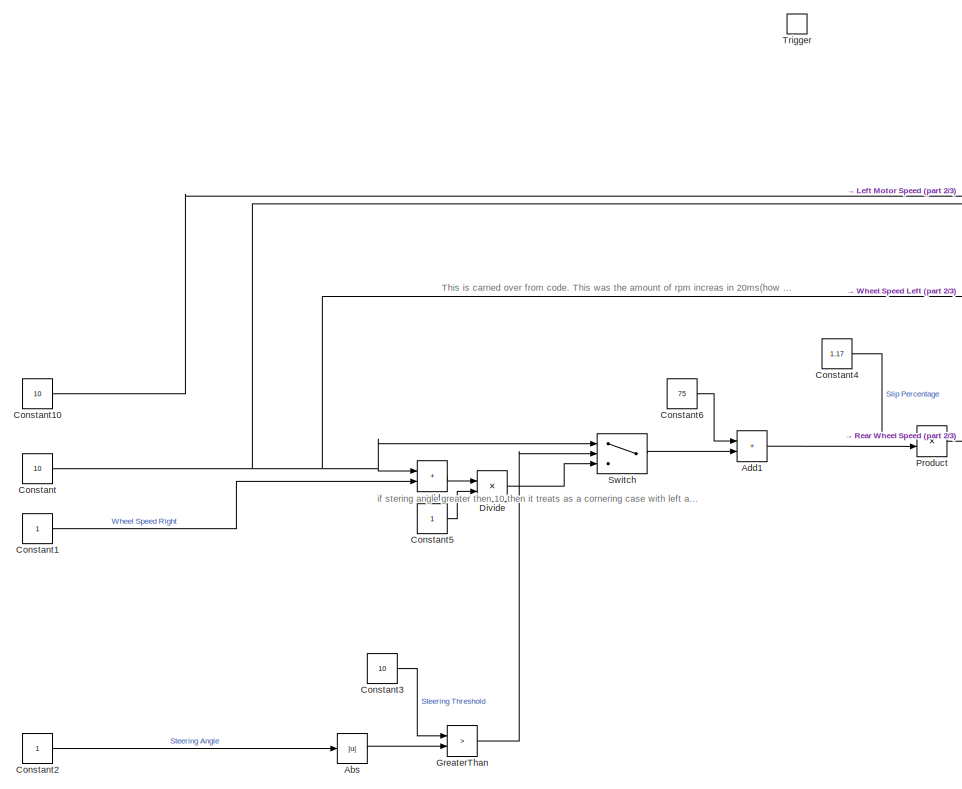
[diagram: Triggered Subsystem3 - part 1/3, left side, full height]
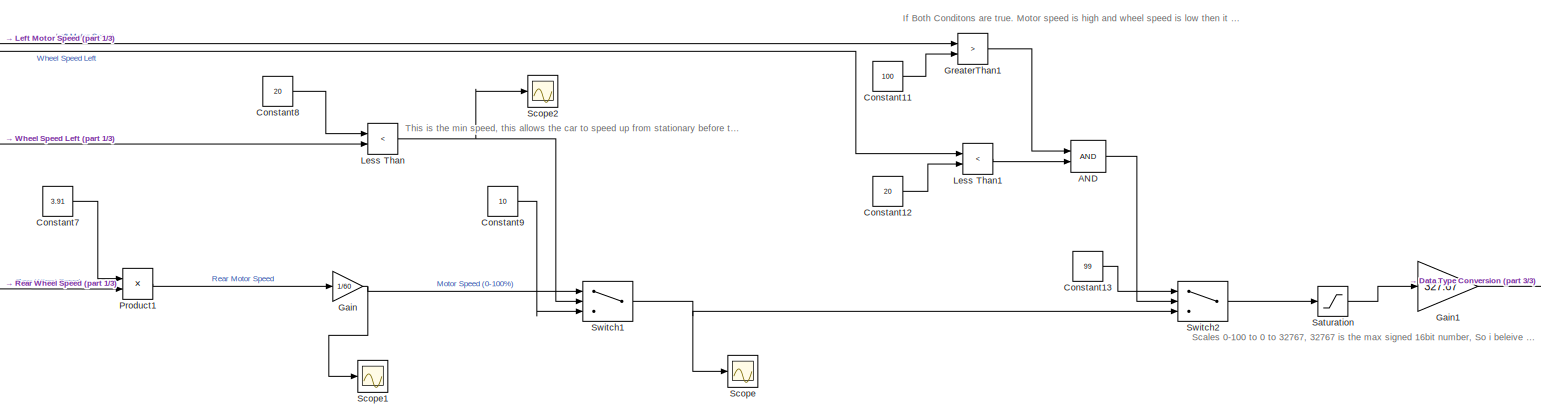
[diagram: Triggered Subsystem3 - part 2/3, central region]
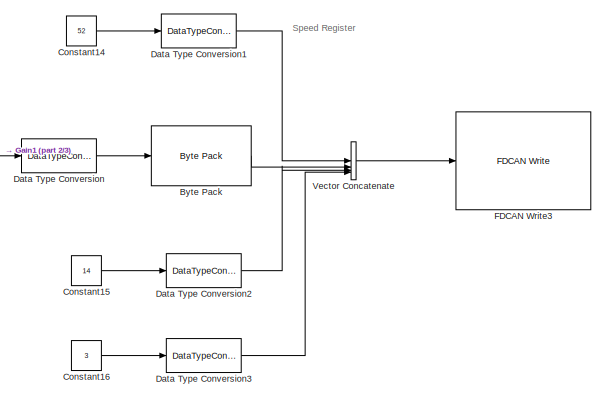
[diagram: Triggered Subsystem3 - part 3/3, middle right region]
BLOCK [SubSystem] Triggered Subsystem3
  TreatAsAtomicUnit = on
BLOCK [Logic] Triggered Subsystem3/AND
  AllPortsSameDT = off
  IconShape = distinctive
  OutDataTypeStr = boolean
BLOCK [Abs] Triggered Subsystem3/Abs
  SaturateOnIntegerOverflow = off
BLOCK [Sum] Triggered Subsystem3/Add
  IconShape = rectangular
BLOCK [Sum] Triggered Subsystem3/Add1
  IconShape = rectangular
BLOCK [Reference] Triggered Subsystem3/Byte Pack  REF=stmutilitieslib/Byte Pack
  SourceBlock = stmutilitieslib/Byte Pack
  SourceType = Byte pack
BLOCK [Constant] Triggered Subsystem3/Constant
  Value = 10
BLOCK [Constant] Triggered Subsystem3/Constant1
BLOCK [Constant] Triggered Subsystem3/Constant10
  Value = 10
BLOCK [Constant] Triggered Subsystem3/Constant11
  Value = 100
BLOCK [Constant] Triggered Subsystem3/Constant12
  Value = 20
BLOCK [Constant] Triggered Subsystem3/Constant13
  Value = 99
BLOCK [Constant] Triggered Subsystem3/Constant14
  Value = 52
BLOCK [Constant] Triggered Subsystem3/Constant15
  Value = 14
BLOCK [Constant] Triggered Subsystem3/Constant16
  Value = 3
BLOCK [Constant] Triggered Subsystem3/Constant2
BLOCK [Constant] Triggered Subsystem3/Constant3
  Value = 10
BLOCK [Constant] Triggered Subsystem3/Constant4
  Value = 1.17
BLOCK [Constant] Triggered Subsystem3/Constant5
BLOCK [Constant] Triggered Subsystem3/Constant6
  Value = 75
BLOCK [Constant] Triggered Subsystem3/Constant7
  Value = 3.91
BLOCK [Constant] Triggered Subsystem3/Constant8
  Value = 20
BLOCK [Constant] Triggered Subsystem3/Constant9
  Value = 10
BLOCK [DataTypeConversion] Triggered Subsystem3/Data Type Conversion
  OutDataTypeStr = int16
  RndMeth = Floor
  SaturateOnIntegerOverflow = off
BLOCK [DataTypeConversion] Triggered Subsystem3/Data Type Conversion1
  OutDataTypeStr = uint8
  RndMeth = Floor
  SaturateOnIntegerOverflow = off
BLOCK [DataTypeConversion] Triggered Subsystem3/Data Type Conversion2
  OutDataTypeStr = uint8
  RndMeth = Floor
  SaturateOnIntegerOverflow = off
BLOCK [DataTypeConversion] Triggered Subsystem3/Data Type Conversion3
  OutDataTypeStr = uint8
  RndMeth = Floor
  SaturateOnIntegerOverflow = off
BLOCK [Product] Triggered Subsystem3/Divide
  Inputs = */
BLOCK [Reference] Triggered Subsystem3/FDCAN Write3  REF=stm32blockslib/FDCAN Write
  LibrarySourceBlock = stm32l5xxblockslib/FDCAN Write
  SourceBlock = stm32blockslib/FDCAN Write
  SourceType = stm32cube.blocks.FDCANWrite
BLOCK [Gain] Triggered Subsystem3/Gain
  Gain = 1/60
BLOCK [Gain] Triggered Subsystem3/Gain1
  Gain = 327.67
BLOCK [RelationalOperator] Triggered Subsystem3/GreaterThan
  InputSameDT = off
  Operator = >
  OutDataTypeStr = boolean
  RndMeth = Simplest
BLOCK [RelationalOperator] Triggered Subsystem3/GreaterThan1
  InputSameDT = off
  Operator = >
  OutDataTypeStr = boolean
  RndMeth = Simplest
BLOCK [RelationalOperator] Triggered Subsystem3/Less Than
  InputSameDT = off
  Operator = <
  OutDataTypeStr = boolean
  RndMeth = Simplest
BLOCK [RelationalOperator] Triggered Subsystem3/Less Than1
  InputSameDT = off
  Operator = <
  OutDataTypeStr = boolean
  RndMeth = Simplest
BLOCK [Product] Triggered Subsystem3/Product
BLOCK [Product] Triggered Subsystem3/Product1
BLOCK [Saturate] Triggered Subsystem3/Saturation
  LowerLimit = 0
  UpperLimit = 99
BLOCK [Scope] Triggered Subsystem3/Scope
  Floating = off
  NumInputPorts = 1
  ScopeSpecificationString = Simulink.scopes.TimeScopeBlockCfg('CurrentConfiguration', extmgr.ConfigurationSet(extmgr.Configuration('Core','General UI',true),extmgr.Configuration('Core','Source UI',true),extmgr.Configuration('Sources','WiredSimulink',true,'DataLoggingVariableName','ScopeData3'),extmgr.Configuration('Visuals','Time Domain',true,'SerializedDisplays',{struct('MinYLimReal','9.00000','MaxYLimReal','11.00000','YLab...<+1542ch>
BLOCK [Scope] Triggered Subsystem3/Scope1
  Floating = off
  NumInputPorts = 1
  ScopeSpecificationString = Simulink.scopes.TimeScopeBlockCfg('CurrentConfiguration', extmgr.ConfigurationSet(extmgr.Configuration('Core','General UI',true),extmgr.Configuration('Core','Source UI',true),extmgr.Configuration('Sources','WiredSimulink',true,'DataLoggingVariableName','ScopeData1'),extmgr.Configuration('Visuals','Time Domain',true,'SerializedDisplays',{struct('MinYLimReal','5.48082','MaxYLimReal','7.48082','YLabe...<+1501ch>
BLOCK [Scope] Triggered Subsystem3/Scope2
  Floating = off
  NumInputPorts = 1
  ScopeSpecificationString = Simulink.scopes.TimeScopeBlockCfg('CurrentConfiguration', extmgr.ConfigurationSet(extmgr.Configuration('Core','General UI',true),extmgr.Configuration('Core','Source UI',true),extmgr.Configuration('Sources','WiredSimulink',true,'DataLoggingVariableName','ScopeData2'),extmgr.Configuration('Visuals','Time Domain',true,'SerializedDisplays',{struct('MinYLimReal','-1.00000','MaxYLimReal','1.00000','YLab...<+1492ch>
BLOCK [Switch] Triggered Subsystem3/Switch
  Criteria = u2 > Threshold
  InputSameDT = off
  SaturateOnIntegerOverflow = off
BLOCK [Switch] Triggered Subsystem3/Switch1
  Criteria = u2 > Threshold
  InputSameDT = off
  SaturateOnIntegerOverflow = off
BLOCK [Switch] Triggered Subsystem3/Switch2
  Criteria = u2 > Threshold
  InputSameDT = off
  SaturateOnIntegerOverflow = off
BLOCK [TriggerPort] Triggered Subsystem3/Trigger
  StatesWhenEnabling = held
  TriggerType = function-call
  VariantControl = (inherit)
BLOCK [Concatenate] Triggered Subsystem3/Vector Concatenate
  NumInputs = 4
BLOCK [Concatenate] Vector Concatenate
  Commented = on
  NumInputs = 3
ANNOTATION (root): CAN 1 Receive
ANNOTATION (root): CAN 2 Receive
ANNOTATION (root): Inverter Setup
ANNOTATION (root): Message Forwarding from CAN 1 to CAN 2
ANNOTATION (root): Torque Request to Motors
ANNOTATION (root): Traction Control
ANNOTATION (root): A look up table of CAN ID's which are used to request cyclic transmission of data from the inverters
ANNOTATION (root): Byte 0 tells the inverters you are setting up cyclic messaging.
ANNOTATION (root): CAN 1 information from pedal box and dash.
ANNOTATION (root): CAN 2 Receive Data From Inverters
ANNOTATION (root): Counter Selects which ID to send
ANNOTATION (root): For testing purposes only
ANNOTATION (root): Forwarding Messages From the Inverters to Data Logger
ANNOTATION (root): Inverter Can Setup
ANNOTATION (root): This was made for testing the unmultiplexing of Inverter Messages
ANNOTATION 10 HZ Send1: Messages to the Inverters are only sent twice at startup. This is total of 12 messages.
ANNOTATION 10 HZ Send1/Enabled Subsystem: The corrsosponding frequency which a requested message ID should be sent back at.
ANNOTATION 10 HZ Send1/Enabled Subsystem: A look up table of CAN ID's which are used to request cyclic transmission of data from the inverters
ANNOTATION 10 HZ Send1/Enabled Subsystem: Addressed to Inverter LEFT
ANNOTATION 10 HZ Send1/Enabled Subsystem: Addressed to Inverter Right
ANNOTATION 10 HZ Send1/Enabled Subsystem: Byte 0 tells the inverters you are setting up cyclic messaging.
ANNOTATION 10 HZ Send1/Enabled Subsystem: Counter Selects which ID to send
ANNOTATION 50 HZ Send Torque Requests to Inverters: Byte 0 is the Register Address which torque is sent to
ANNOTATION 50 HZ Send Torque Requests to Inverters: Byte reversal is used so that the low byte appears to the left of the high byte
ANNOTATION 50 HZ Send Torque Requests to Inverters: Torque Request To Left Inverter
ANNOTATION 50 HZ Send Torque Requests to Inverters: This is the Register Address which torque is sent to
ANNOTATION 50 HZ Send Torque Requests to Inverters: Torque Request To Right Inverter
ANNOTATION Function-Call Subsystem: CAN Left Receive
ANNOTATION Function-Call Subsystem: CAN Right Receive
ANNOTATION Function-Call Subsystem2: Assume it is low_hight byte, doesnt explicity say
ANNOTATION Function-Call Subsystem2: Currently not using this but if a user define was set up in the dash then it could be used.
ANNOTATION Triggered Subsystem: Addressed to Inverter Right
ANNOTATION Triggered Subsystem3: If Both Conditons are true. Motor speed is high and wheel speed is low then it is assumed a wheel speed sensor error has occured. In this case the limit is set to the maximum.
ANNOTATION Triggered Subsystem3: Scales 0-100 to 0 to 32767, 32767 is the max signed 16bit number, So i beleive this will be a percentage in the inverters
ANNOTATION Triggered Subsystem3: Speed Register
ANNOTATION Triggered Subsystem3: This is carried over from code. This was the amount of rpm increas in 20ms(how often code runs) under a 1G acceleration
ANNOTATION Triggered Subsystem3: This is the min speed, this allows the car to speed up from stationary before traction control starts, This allows the wheel speed sensor to be able to determine the speed.
ANNOTATION Triggered Subsystem3: if stering angle greater then 10 then it treats as a cornering case with left and right side being assigned different values. If less then 10 this is straight line case and both wheels are assigned the average of the two.
NET 1-D Lookup Table1:1 -> Data Type Conversion4:1, Scope1:1
NET 1-D Lookup Table2:1 -> Data Type Conversion6:1, Scope3:1
NET 1-D Lookup Table:1 -> Data Type Conversion2:1, Scope:1
LINE 10 HZ Send1/Constant1:1 -> 10 HZ Send1/Switch:1
LINE 10 HZ Send1/Constant2:1 -> 10 HZ Send1/Switch:3
LINE 10 HZ Send1/Constant3:1 -> 10 HZ Send1/GreaterThan:2
LINE 10 HZ Send1/Constant:1 -> 10 HZ Send1/Sum:2
LINE 10 HZ Send1/Enabled Subsystem/Constant4:1 -> 10 HZ Send1/Enabled Subsystem/Data Type Conversion3:1
LINE 10 HZ Send1/Enabled Subsystem/Counter Limited1:1 -> 10 HZ Send1/Enabled Subsystem/Data Type Conversion1:1
LINE 10 HZ Send1/Enabled Subsystem/Counter Limited:1 -> 10 HZ Send1/Enabled Subsystem/Data Type Conversion16:1
LINE 10 HZ Send1/Enabled Subsystem/Data Type Conversion16:1 -> 10 HZ Send1/Enabled Subsystem/Direct Lookup Table (n-D):1
LINE 10 HZ Send1/Enabled Subsystem/Data Type Conversion1:1 -> 10 HZ Send1/Enabled Subsystem/Direct Lookup Table (n-D)1:1
LINE 10 HZ Send1/Enabled Subsystem/Data Type Conversion2:1 -> 10 HZ Send1/Enabled Subsystem/Vector Concatenate:2
LINE 10 HZ Send1/Enabled Subsystem/Data Type Conversion3:1 -> 10 HZ Send1/Enabled Subsystem/Vector Concatenate:1
LINE 10 HZ Send1/Enabled Subsystem/Data Type Conversion4:1 -> 10 HZ Send1/Enabled Subsystem/Vector Concatenate:3
NET 10 HZ Send1/Enabled Subsystem/Direct Lookup Table (n-D)1:1 -> 10 HZ Send1/Enabled Subsystem/Data Type Conversion4:1, 10 HZ Send1/Enabled Subsystem/Scope3:1
NET 10 HZ Send1/Enabled Subsystem/Direct Lookup Table (n-D):1 -> 10 HZ Send1/Enabled Subsystem/Data Type Conversion2:1, 10 HZ Send1/Enabled Subsystem/Scope2:1
NET 10 HZ Send1/Enabled Subsystem/Vector Concatenate:1 -> 10 HZ Send1/Enabled Subsystem/FDCAN Write2:1, 10 HZ Send1/Enabled Subsystem/FDCAN Write3:1
NET 10 HZ Send1/GreaterThan:1 -> 10 HZ Send1/Scope1:1, 10 HZ Send1/Switch:2
NET 10 HZ Send1/Sum:1 -> 10 HZ Send1/GreaterThan:1, 10 HZ Send1/Unit Delay:1
NET 10 HZ Send1/Switch:1 -> 10 HZ Send1/Enabled Subsystem:enable, 10 HZ Send1/Scope:1
LINE 10 HZ Send1/Unit Delay:1 -> 10 HZ Send1/Sum:1
LINE 50 HZ Send Torque Requests to Inverters/Byte Pack1:1 -> 50 HZ Send Torque Requests to Inverters/Vector Concatenate1:2
LINE 50 HZ Send Torque Requests to Inverters/Byte Pack:1 -> 50 HZ Send Torque Requests to Inverters/Vector Concatenate:2
LINE 50 HZ Send Torque Requests to Inverters/Byte Reversal1:1 -> 50 HZ Send Torque Requests to Inverters/Byte Pack1:1
LINE 50 HZ Send Torque Requests to Inverters/Byte Reversal:1 -> 50 HZ Send Torque Requests to Inverters/Byte Pack:1
LINE 50 HZ Send Torque Requests to Inverters/Constant1:1 -> 50 HZ Send Torque Requests to Inverters/Data Type Conversion1:1
LINE 50 HZ Send Torque Requests to Inverters/Constant2:1 -> 50 HZ Send Torque Requests to Inverters/Data Type Conversion2:1
LINE 50 HZ Send Torque Requests to Inverters/Constant3:1 -> 50 HZ Send Torque Requests to Inverters/Data Type Conversion3:1
LINE 50 HZ Send Torque Requests to Inverters/Constant:1 -> 50 HZ Send Torque Requests to Inverters/Data Type Conversion:1
LINE 50 HZ Send Torque Requests to Inverters/Data Type Conversion1:1 -> 50 HZ Send Torque Requests to Inverters/Vector Concatenate:1
LINE 50 HZ Send Torque Requests to Inverters/Data Type Conversion2:1 -> 50 HZ Send Torque Requests to Inverters/Byte Reversal1:1
LINE 50 HZ Send Torque Requests to Inverters/Data Type Conversion3:1 -> 50 HZ Send Torque Requests to Inverters/Vector Concatenate1:1
LINE 50 HZ Send Torque Requests to Inverters/Data Type Conversion:1 -> 50 HZ Send Torque Requests to Inverters/Byte Reversal:1
LINE 50 HZ Send Torque Requests to Inverters/Vector Concatenate1:1 -> 50 HZ Send Torque Requests to Inverters/FDCAN Write1:1
LINE 50 HZ Send Torque Requests to Inverters/Vector Concatenate:1 -> 50 HZ Send Torque Requests to Inverters/FDCAN Write3:1
NET Byte Unpack1:1 -> Data Type Conversion:1, Scope8:1
LINE Constant10:1 -> Goto45:1
LINE Constant11:1 -> Goto47:1
LINE Constant1:1 -> Goto37:1
LINE Constant2:1 -> Goto38:1
LINE Constant3:1 -> Goto39:1
LINE Constant4:1 -> Data Type Conversion1:1
LINE Constant5:1 -> Goto41:1
LINE Constant6:1 -> Goto42:1
LINE Constant7:1 -> Data Type Conversion5:1
LINE Constant:1 -> Goto36:1
LINE Counter Limited:1 -> Data Type Conversion16:1
LINE Data Type Conversion16:1 -> 1-D Lookup Table:1
LINE Data Type Conversion1:1 -> 1-D Lookup Table1:1
LINE Data Type Conversion2:1 -> Vector Concatenate:1
LINE Data Type Conversion4:1 -> Vector Concatenate:2
LINE Data Type Conversion5:1 -> 1-D Lookup Table2:1
LINE Data Type Conversion6:1 -> Vector Concatenate:3
NET Data Type Conversion7:1 -> Scope6:1, Switch Case1:1
NET Data Type Conversion:1 -> If Action Subsystem2:1, If Action Subsystem3:1, If Action Subsystem4:1, If Action Subsystem5:1, If Action Subsystem6:1, If Action Subsystem7:1
LINE From1:1 -> Triggered Subsystem:1
LINE From2:1 -> Triggered Subsystem:2
LINE From3:1 -> Triggered Subsystem:3
LINE From4:1 -> Triggered Subsystem:4
LINE From5:1 -> Triggered Subsystem:5
LINE From6:1 -> Triggered Subsystem:6
LINE From7:1 -> Triggered Subsystem:7
LINE From8:1 -> Triggered Subsystem:8
LINE Function Call Generator:1 -> 50 HZ Send Torque Requests to Inverters:trigger
LINE Function-Call Generator4:1 -> Function-Call Split:1
LINE Function-Call Split2:1 -> Triggered Subsystem:trigger
LINE Function-Call Split2:2 -> Triggered Subsystem3:trigger
LINE Function-Call Split:1 -> Function-Call Split2:1
LINE Function-Call Split:2 -> 10 HZ Send1:trigger
NET Function-Call Subsystem/Byte Unpack1:1 -> Function-Call Subsystem/If Action Subsystem10:1, Function-Call Subsystem/If Action Subsystem11:1, Function-Call Subsystem/If Action Subsystem12:1, Function-Call Subsystem/If Action Subsystem7:1, Function-Call Subsystem/If Action Subsystem8:1, Function-Call Subsystem/If Action Subsystem9:1, Function-Call Subsystem/Scope2:1
LINE Function-Call Subsystem/Byte Unpack:1 -> Function-Call Subsystem/Data Type Conversion:1
NET Function-Call Subsystem/CAN FD Unpack1:1 -> Function-Call Subsystem/Selector1:1, Function-Call Subsystem/Selector2:1
NET Function-Call Subsystem/CAN FD Unpack2:1 -> Function-Call Subsystem/Selector6:1, Function-Call Subsystem/Selector:1
NET Function-Call Subsystem/Data Type Conversion1:1 -> Function-Call Subsystem/Scope1:1, Function-Call Subsystem/Switch Case1:1
NET Function-Call Subsystem/Data Type Conversion3:1 -> Function-Call Subsystem/Scope4:1, Function-Call Subsystem/Switch Case:1
NET Function-Call Subsystem/Data Type Conversion:1 -> Function-Call Subsystem/If Action Subsystem1:1, Function-Call Subsystem/If Action Subsystem2:1, Function-Call Subsystem/If Action Subsystem3:1, Function-Call Subsystem/If Action Subsystem4:1, Function-Call Subsystem/If Action Subsystem5:1, Function-Call Subsystem/If Action Subsystem6:1, Function-Call Subsystem/Scope7:1
NET Function-Call Subsystem/FDCAN Read1:1 -> Function-Call Subsystem/CAN FD Unpack1:1, Function-Call Subsystem/CAN FD Unpack2:1
LINE Function-Call Subsystem/If Action Subsystem1/In1:1 -> Function-Call Subsystem/If Action Subsystem1/Out1:1
LINE Function-Call Subsystem/If Action Subsystem10/In1:1 -> Function-Call Subsystem/If Action Subsystem10/Out1:1
LINE Function-Call Subsystem/If Action Subsystem10:1 -> Function-Call Subsystem/Out9:1
LINE Function-Call Subsystem/If Action Subsystem11/In1:1 -> Function-Call Subsystem/If Action Subsystem11/Out1:1
LINE Function-Call Subsystem/If Action Subsystem11:1 -> Function-Call Subsystem/Out8:1
LINE Function-Call Subsystem/If Action Subsystem12/In1:1 -> Function-Call Subsystem/If Action Subsystem12/Out1:1
LINE Function-Call Subsystem/If Action Subsystem12:1 -> Function-Call Subsystem/Out7:1
LINE Function-Call Subsystem/If Action Subsystem1:1 -> Function-Call Subsystem/Out6:1
LINE Function-Call Subsystem/If Action Subsystem2/In1:1 -> Function-Call Subsystem/If Action Subsystem2/Out1:1
LINE Function-Call Subsystem/If Action Subsystem2:1 -> Function-Call Subsystem/Out5:1
LINE Function-Call Subsystem/If Action Subsystem3/In1:1 -> Function-Call Subsystem/If Action Subsystem3/Out1:1
LINE Function-Call Subsystem/If Action Subsystem3:1 -> Function-Call Subsystem/Out4:1
LINE Function-Call Subsystem/If Action Subsystem4/In1:1 -> Function-Call Subsystem/If Action Subsystem4/Out1:1
LINE Function-Call Subsystem/If Action Subsystem4:1 -> Function-Call Subsystem/Out3:1
LINE Function-Call Subsystem/If Action Subsystem5/In1:1 -> Function-Call Subsystem/If Action Subsystem5/Out1:1
LINE Function-Call Subsystem/If Action Subsystem5:1 -> Function-Call Subsystem/Out2:1
LINE Function-Call Subsystem/If Action Subsystem6/In1:1 -> Function-Call Subsystem/If Action Subsystem6/Out1:1
LINE Function-Call Subsystem/If Action Subsystem6:1 -> Function-Call Subsystem/Out1:1
LINE Function-Call Subsystem/If Action Subsystem7/In1:1 -> Function-Call Subsystem/If Action Subsystem7/Out1:1
LINE Function-Call Subsystem/If Action Subsystem7:1 -> Function-Call Subsystem/Out12:1
LINE Function-Call Subsystem/If Action Subsystem8/In1:1 -> Function-Call Subsystem/If Action Subsystem8/Out1:1
LINE Function-Call Subsystem/If Action Subsystem8:1 -> Function-Call Subsystem/Out11:1
LINE Function-Call Subsystem/If Action Subsystem9/In1:1 -> Function-Call Subsystem/If Action Subsystem9/Out1:1
LINE Function-Call Subsystem/If Action Subsystem9:1 -> Function-Call Subsystem/Out10:1
LINE Function-Call Subsystem/Selector1:1 -> Function-Call Subsystem/Data Type Conversion1:1
LINE Function-Call Subsystem/Selector2:1 -> Function-Call Subsystem/Byte Unpack1:1
LINE Function-Call Subsystem/Selector6:1 -> Function-Call Subsystem/Byte Unpack:1
LINE Function-Call Subsystem/Selector:1 -> Function-Call Subsystem/Data Type Conversion3:1
LINE Function-Call Subsystem/Switch Case1:1 -> Function-Call Subsystem/If Action Subsystem12:ifaction
LINE Function-Call Subsystem/Switch Case1:2 -> Function-Call Subsystem/If Action Subsystem11:ifaction
LINE Function-Call Subsystem/Switch Case1:3 -> Function-Call Subsystem/If Action Subsystem10:ifaction
LINE Function-Call Subsystem/Switch Case1:4 -> Function-Call Subsystem/If Action Subsystem9:ifaction
LINE Function-Call Subsystem/Switch Case1:5 -> Function-Call Subsystem/If Action Subsystem8:ifaction
LINE Function-Call Subsystem/Switch Case1:6 -> Function-Call Subsystem/If Action Subsystem7:ifaction
LINE Function-Call Subsystem/Switch Case:1 -> Function-Call Subsystem/If Action Subsystem6:ifaction
LINE Function-Call Subsystem/Switch Case:2 -> Function-Call Subsystem/If Action Subsystem5:ifaction
LINE Function-Call Subsystem/Switch Case:3 -> Function-Call Subsystem/If Action Subsystem4:ifaction
LINE Function-Call Subsystem/Switch Case:4 -> Function-Call Subsystem/If Action Subsystem3:ifaction
LINE Function-Call Subsystem/Switch Case:5 -> Function-Call Subsystem/If Action Subsystem2:ifaction
LINE Function-Call Subsystem/Switch Case:6 -> Function-Call Subsystem/If Action Subsystem1:ifaction
LINE Function-Call Subsystem2/Byte Unpack1:1 -> Function-Call Subsystem2/Out18:1
LINE Function-Call Subsystem2/Byte Unpack2:1 -> Function-Call Subsystem2/Out19:1
LINE Function-Call Subsystem2/Byte Unpack3:1 -> Function-Call Subsystem2/Out20:1
LINE Function-Call Subsystem2/Byte Unpack4:1 -> Function-Call Subsystem2/Terminator1:1
LINE Function-Call Subsystem2/Byte Unpack5:1 -> Function-Call Subsystem2/Terminator2:1
LINE Function-Call Subsystem2/Byte Unpack:1 -> Function-Call Subsystem2/Out17:1
NET Function-Call Subsystem2/CAN FD Unpack1:1 -> Function-Call Subsystem2/Selector2:1, Function-Call Subsystem2/Selector3:1, Function-Call Subsystem2/Selector4:1, Function-Call Subsystem2/Selector5:1, Function-Call Subsystem2/Selector6:1, Function-Call Subsystem2/Selector7:1
NET Function-Call Subsystem2/CAN FD Unpack2:1 -> Function-Call Subsystem2/Selector1:1, Function-Call Subsystem2/Selector:1
NET Function-Call Subsystem2/CAN FD Unpack3:1 -> Function-Call Subsystem2/Selector10:1, Function-Call Subsystem2/Selector11:1, Function-Call Subsystem2/Selector8:1, Function-Call Subsystem2/Selector9:1
NET Function-Call Subsystem2/CAN FD Unpack4:1 -> Function-Call Subsystem2/Selector12:1, Function-Call Subsystem2/Selector13:1, Function-Call Subsystem2/Selector14:1, Function-Call Subsystem2/Selector15:1
LINE Function-Call Subsystem2/Data Type Conversion10:1 -> Function-Call Subsystem2/Out9:1
LINE Function-Call Subsystem2/Data Type Conversion11:1 -> Function-Call Subsystem2/Out10:1
LINE Function-Call Subsystem2/Data Type Conversion12:1 -> Function-Call Subsystem2/Out12:1
LINE Function-Call Subsystem2/Data Type Conversion13:1 -> Function-Call Subsystem2/Out13:1
LINE Function-Call Subsystem2/Data Type Conversion14:1 -> Function-Call Subsystem2/Out11:1
LINE Function-Call Subsystem2/Data Type Conversion15:1 -> Function-Call Subsystem2/Out14:1
LINE Function-Call Subsystem2/Data Type Conversion16:1 -> Function-Call Subsystem2/Out15:1
LINE Function-Call Subsystem2/Data Type Conversion17:1 -> Function-Call Subsystem2/Out16:1
LINE Function-Call Subsystem2/Data Type Conversion18:1 -> Function-Call Subsystem2/Out21:1
LINE Function-Call Subsystem2/Data Type Conversion19:1 -> Function-Call Subsystem2/Out22:1
LINE Function-Call Subsystem2/Data Type Conversion1:1 -> Function-Call Subsystem2/Out2:1
LINE Function-Call Subsystem2/Data Type Conversion20:1 -> Function-Call Subsystem2/Out23:1
LINE Function-Call Subsystem2/Data Type Conversion21:1 -> Function-Call Subsystem2/Out24:1
LINE Function-Call Subsystem2/Data Type Conversion2:1 -> Function-Call Subsystem2/Out1:1
LINE Function-Call Subsystem2/Data Type Conversion3:1 -> Function-Call Subsystem2/Out3:1
LINE Function-Call Subsystem2/Data Type Conversion4:1 -> Function-Call Subsystem2/Out4:1
LINE Function-Call Subsystem2/Data Type Conversion5:1 -> Function-Call Subsystem2/Out5:1
LINE Function-Call Subsystem2/Data Type Conversion6:1 -> Function-Call Subsystem2/Terminator:1
LINE Function-Call Subsystem2/Data Type Conversion7:1 -> Function-Call Subsystem2/Out7:1
LINE Function-Call Subsystem2/Data Type Conversion8:1 -> Function-Call Subsystem2/Out6:1
LINE Function-Call Subsystem2/Data Type Conversion9:1 -> Function-Call Subsystem2/Out8:1
LINE Function-Call Subsystem2/Extract Bits10:1 -> Function-Call Subsystem2/Data Type Conversion14:1
LINE Function-Call Subsystem2/Extract Bits11:1 -> Function-Call Subsystem2/Data Type Conversion12:1
LINE Function-Call Subsystem2/Extract Bits12:1 -> Function-Call Subsystem2/Data Type Conversion13:1
LINE Function-Call Subsystem2/Extract Bits1:1 -> Function-Call Subsystem2/Data Type Conversion1:1
LINE Function-Call Subsystem2/Extract Bits2:1 -> Function-Call Subsystem2/Data Type Conversion3:1
LINE Function-Call Subsystem2/Extract Bits3:1 -> Function-Call Subsystem2/Data Type Conversion4:1
LINE Function-Call Subsystem2/Extract Bits4:1 -> Function-Call Subsystem2/Data Type Conversion5:1
LINE Function-Call Subsystem2/Extract Bits5:1 -> Function-Call Subsystem2/Data Type Conversion8:1
LINE Function-Call Subsystem2/Extract Bits6:1 -> Function-Call Subsystem2/Data Type Conversion7:1
LINE Function-Call Subsystem2/Extract Bits7:1 -> Function-Call Subsystem2/Data Type Conversion9:1
LINE Function-Call Subsystem2/Extract Bits8:1 -> Function-Call Subsystem2/Data Type Conversion10:1
LINE Function-Call Subsystem2/Extract Bits9:1 -> Function-Call Subsystem2/Data Type Conversion11:1
LINE Function-Call Subsystem2/Extract Bits:1 -> Function-Call Subsystem2/Data Type Conversion2:1
NET Function-Call Subsystem2/FDCAN Read1:1 -> Function-Call Subsystem2/CAN FD Unpack1:1, Function-Call Subsystem2/CAN FD Unpack2:1, Function-Call Subsystem2/CAN FD Unpack3:1, Function-Call Subsystem2/CAN FD Unpack4:1
LINE Function-Call Subsystem2/Selector10:1 -> Function-Call Subsystem2/Data Type Conversion18:1
LINE Function-Call Subsystem2/Selector11:1 -> Function-Call Subsystem2/Data Type Conversion19:1
LINE Function-Call Subsystem2/Selector12:1 -> Function-Call Subsystem2/Byte Unpack4:1
LINE Function-Call Subsystem2/Selector13:1 -> Function-Call Subsystem2/Byte Unpack5:1
LINE Function-Call Subsystem2/Selector14:1 -> Function-Call Subsystem2/Data Type Conversion20:1
LINE Function-Call Subsystem2/Selector15:1 -> Function-Call Subsystem2/Data Type Conversion21:1
LINE Function-Call Subsystem2/Selector1:1 -> Function-Call Subsystem2/Data Type Conversion6:1
NET Function-Call Subsystem2/Selector2:1 -> Function-Call Subsystem2/Extract Bits10:1, Function-Call Subsystem2/Extract Bits11:1, Function-Call Subsystem2/Extract Bits12:1, Function-Call Subsystem2/Extract Bits5:1, Function-Call Subsystem2/Extract Bits6:1, Function-Call Subsystem2/Extract Bits7:1, Function-Call Subsystem2/Extract Bits8:1, Function-Call Subsystem2/Extract Bits9:1
LINE Function-Call Subsystem2/Selector3:1 -> Function-Call Subsystem2/Data Type Conversion15:1
LINE Function-Call Subsystem2/Selector4:1 -> Function-Call Subsystem2/Data Type Conversion16:1
LINE Function-Call Subsystem2/Selector5:1 -> Function-Call Subsystem2/Data Type Conversion17:1
LINE Function-Call Subsystem2/Selector6:1 -> Function-Call Subsystem2/Byte Unpack:1
LINE Function-Call Subsystem2/Selector7:1 -> Function-Call Subsystem2/Byte Unpack1:1
LINE Function-Call Subsystem2/Selector8:1 -> Function-Call Subsystem2/Byte Unpack2:1
LINE Function-Call Subsystem2/Selector9:1 -> Function-Call Subsystem2/Byte Unpack3:1
NET Function-Call Subsystem2/Selector:1 -> Function-Call Subsystem2/Extract Bits1:1, Function-Call Subsystem2/Extract Bits2:1, Function-Call Subsystem2/Extract Bits3:1, Function-Call Subsystem2/Extract Bits4:1, Function-Call Subsystem2/Extract Bits:1
LINE Function-Call Subsystem2/Subsystem/Constant2:1 -> Function-Call Subsystem2/Subsystem/Out1:1
LINE Function-Call Subsystem2:1 -> Goto40:1
LINE Function-Call Subsystem2:10 -> Goto67:1
LINE Function-Call Subsystem2:11 -> Goto44:1
LINE Function-Call Subsystem2:12 -> Goto46:1
LINE Function-Call Subsystem2:13 -> Goto48:1
LINE Function-Call Subsystem2:14 -> Goto49:1
LINE Function-Call Subsystem2:15 -> Goto50:1
LINE Function-Call Subsystem2:16 -> Goto51:1
LINE Function-Call Subsystem2:17 -> Goto52:1
LINE Function-Call Subsystem2:18 -> Goto53:1
LINE Function-Call Subsystem2:19 -> Goto54:1
LINE Function-Call Subsystem2:2 -> Goto43:1
LINE Function-Call Subsystem2:20 -> Goto55:1
LINE Function-Call Subsystem2:21 -> Goto57:1
LINE Function-Call Subsystem2:22 -> Goto58:1
LINE Function-Call Subsystem2:23 -> Goto59:1
LINE Function-Call Subsystem2:24 -> Goto60:1
LINE Function-Call Subsystem2:3 -> Goto56:1
LINE Function-Call Subsystem2:4 -> Goto61:1
LINE Function-Call Subsystem2:5 -> Goto62:1
LINE Function-Call Subsystem2:6 -> Goto63:1
LINE Function-Call Subsystem2:7 -> Goto64:1
LINE Function-Call Subsystem2:8 -> Goto65:1
LINE Function-Call Subsystem2:9 -> Goto66:1
LINE Function-Call Subsystem:1 -> Goto24:1
LINE Function-Call Subsystem:10 -> Goto34:1
LINE Function-Call Subsystem:11 -> Goto33:1
LINE Function-Call Subsystem:12 -> Goto35:1
LINE Function-Call Subsystem:2 -> Goto25:1
LINE Function-Call Subsystem:3 -> Goto26:1
LINE Function-Call Subsystem:4 -> Goto27:1
LINE Function-Call Subsystem:5 -> Goto28:1
LINE Function-Call Subsystem:6 -> Goto29:1
LINE Function-Call Subsystem:7 -> Goto30:1
LINE Function-Call Subsystem:8 -> Goto31:1
LINE Function-Call Subsystem:9 -> Goto32:1
LINE Hardware Interrupt1:1 -> Function-Call Subsystem:trigger
LINE Hardware Interrupt2:1 -> Function-Call Subsystem2:trigger
LINE If Action Subsystem2/In1:1 -> If Action Subsystem2/Out1:1
NET If Action Subsystem2:1 -> Scope10:1, Scope11:6
LINE If Action Subsystem3/In1:1 -> If Action Subsystem3/Out1:1
NET If Action Subsystem3:1 -> Scope11:5, Scope9:1
LINE If Action Subsystem4/In1:1 -> If Action Subsystem4/Out1:1
NET If Action Subsystem4:1 -> Scope11:4, Scope7:1
LINE If Action Subsystem5/In1:1 -> If Action Subsystem5/Out1:1
NET If Action Subsystem5:1 -> Scope11:3, Scope5:1
LINE If Action Subsystem6/In1:1 -> If Action Subsystem6/Out1:1
NET If Action Subsystem6:1 -> Scope11:2, Scope4:1
LINE If Action Subsystem7/In1:1 -> If Action Subsystem7/Out1:1
NET If Action Subsystem7:1 -> Scope11:1, Scope2:1
LINE Selector1:1 -> Data Type Conversion7:1
LINE Selector2:1 -> Byte Unpack1:1
LINE Subsystem/Constant2:1 -> Subsystem/Out1:1
LINE Switch Case1:1 -> If Action Subsystem7:ifaction
LINE Switch Case1:2 -> If Action Subsystem6:ifaction
LINE Switch Case1:3 -> If Action Subsystem5:ifaction
LINE Switch Case1:4 -> If Action Subsystem4:ifaction
LINE Switch Case1:5 -> If Action Subsystem3:ifaction
LINE Switch Case1:6 -> If Action Subsystem2:ifaction
LINE Triggered Subsystem/Byte Pack1:1 -> Triggered Subsystem/Vector Concatenate:2
LINE Triggered Subsystem/Byte Pack2:1 -> Triggered Subsystem/Vector Concatenate:3
LINE Triggered Subsystem/Byte Pack3:1 -> Triggered Subsystem/Vector Concatenate:4
LINE Triggered Subsystem/Byte Pack4:1 -> Triggered Subsystem/Vector Concatenate1:1
LINE Triggered Subsystem/Byte Pack5:1 -> Triggered Subsystem/Vector Concatenate1:2
LINE Triggered Subsystem/Byte Pack6:1 -> Triggered Subsystem/Vector Concatenate1:3
LINE Triggered Subsystem/Byte Pack7:1 -> Triggered Subsystem/Vector Concatenate1:4
LINE Triggered Subsystem/Byte Pack:1 -> Triggered Subsystem/Vector Concatenate:1
LINE Triggered Subsystem/Byte Reversal1:1 -> Triggered Subsystem/Byte Pack1:1
LINE Triggered Subsystem/Byte Reversal2:1 -> Triggered Subsystem/Byte Pack2:1
LINE Triggered Subsystem/Byte Reversal3:1 -> Triggered Subsystem/Byte Pack3:1
LINE Triggered Subsystem/Byte Reversal4:1 -> Triggered Subsystem/Byte Pack4:1
LINE Triggered Subsystem/Byte Reversal5:1 -> Triggered Subsystem/Byte Pack5:1
LINE Triggered Subsystem/Byte Reversal6:1 -> Triggered Subsystem/Byte Pack6:1
LINE Triggered Subsystem/Byte Reversal7:1 -> Triggered Subsystem/Byte Pack7:1
LINE Triggered Subsystem/Byte Reversal:1 -> Triggered Subsystem/Byte Pack:1
LINE Triggered Subsystem/Data Type Conversion1:1 -> Triggered Subsystem/Byte Reversal1:1
LINE Triggered Subsystem/Data Type Conversion2:1 -> Triggered Subsystem/Byte Reversal2:1
LINE Triggered Subsystem/Data Type Conversion3:1 -> Triggered Subsystem/Byte Reversal3:1
LINE Triggered Subsystem/Data Type Conversion4:1 -> Triggered Subsystem/Byte Reversal4:1
LINE Triggered Subsystem/Data Type Conversion5:1 -> Triggered Subsystem/Byte Reversal5:1
LINE Triggered Subsystem/Data Type Conversion6:1 -> Triggered Subsystem/Byte Reversal6:1
LINE Triggered Subsystem/Data Type Conversion7:1 -> Triggered Subsystem/Byte Reversal7:1
LINE Triggered Subsystem/Data Type Conversion:1 -> Triggered Subsystem/Byte Reversal:1
LINE Triggered Subsystem/In1:1 -> Triggered Subsystem/Data Type Conversion:1
LINE Triggered Subsystem/In2:1 -> Triggered Subsystem/Data Type Conversion1:1
LINE Triggered Subsystem/In3:1 -> Triggered Subsystem/Data Type Conversion2:1
NET Triggered Subsystem/In4:1 -> Triggered Subsystem/Data Type Conversion3:1, Triggered Subsystem/Scope:1
LINE Triggered Subsystem/In5:1 -> Triggered Subsystem/Data Type Conversion4:1
LINE Triggered Subsystem/In6:1 -> Triggered Subsystem/Data Type Conversion5:1
LINE Triggered Subsystem/In7:1 -> Triggered Subsystem/Data Type Conversion6:1
LINE Triggered Subsystem/In8:1 -> Triggered Subsystem/Data Type Conversion7:1
LINE Triggered Subsystem/Vector Concatenate1:1 -> Triggered Subsystem/FDCAN Write1:1
LINE Triggered Subsystem/Vector Concatenate:1 -> Triggered Subsystem/FDCAN Write3:1
LINE Triggered Subsystem3/AND:1 -> Triggered Subsystem3/Switch2:2
LINE Triggered Subsystem3/Abs:1 -> Triggered Subsystem3/GreaterThan:2
LINE Triggered Subsystem3/Add1:1 -> Triggered Subsystem3/Product:2
LINE Triggered Subsystem3/Add:1 -> Triggered Subsystem3/Divide:1
LINE Triggered Subsystem3/Byte Pack:1 -> Triggered Subsystem3/Vector Concatenate:2
LINE Triggered Subsystem3/Constant10:1 -> Triggered Subsystem3/GreaterThan1:1
LINE Triggered Subsystem3/Constant11:1 -> Triggered Subsystem3/GreaterThan1:2
LINE Triggered Subsystem3/Constant12:1 -> Triggered Subsystem3/Less Than1:2
LINE Triggered Subsystem3/Constant13:1 -> Triggered Subsystem3/Switch2:1
LINE Triggered Subsystem3/Constant14:1 -> Triggered Subsystem3/Data Type Conversion1:1
LINE Triggered Subsystem3/Constant15:1 -> Triggered Subsystem3/Data Type Conversion2:1
LINE Triggered Subsystem3/Constant16:1 -> Triggered Subsystem3/Data Type Conversion3:1
LINE Triggered Subsystem3/Constant1:1 -> Triggered Subsystem3/Add:2
LINE Triggered Subsystem3/Constant2:1 -> Triggered Subsystem3/Abs:1
LINE Triggered Subsystem3/Constant3:1 -> Triggered Subsystem3/GreaterThan:1
LINE Triggered Subsystem3/Constant4:1 -> Triggered Subsystem3/Product:1
LINE Triggered Subsystem3/Constant5:1 -> Triggered Subsystem3/Divide:2
LINE Triggered Subsystem3/Constant6:1 -> Triggered Subsystem3/Add1:1
LINE Triggered Subsystem3/Constant7:1 -> Triggered Subsystem3/Product1:1
LINE Triggered Subsystem3/Constant8:1 -> Triggered Subsystem3/Less Than:1
LINE Triggered Subsystem3/Constant9:1 -> Triggered Subsystem3/Switch1:3
NET Triggered Subsystem3/Constant:1 -> Triggered Subsystem3/Add:1, Triggered Subsystem3/Less Than1:1, Triggered Subsystem3/Less Than:2, Triggered Subsystem3/Switch:1
LINE Triggered Subsystem3/Data Type Conversion1:1 -> Triggered Subsystem3/Vector Concatenate:1
LINE Triggered Subsystem3/Data Type Conversion2:1 -> Triggered Subsystem3/Vector Concatenate:3
LINE Triggered Subsystem3/Data Type Conversion3:1 -> Triggered Subsystem3/Vector Concatenate:4
LINE Triggered Subsystem3/Data Type Conversion:1 -> Triggered Subsystem3/Byte Pack:1
LINE Triggered Subsystem3/Divide:1 -> Triggered Subsystem3/Switch:3
LINE Triggered Subsystem3/Gain1:1 -> Triggered Subsystem3/Data Type Conversion:1
NET Triggered Subsystem3/Gain:1 -> Triggered Subsystem3/Scope1:1, Triggered Subsystem3/Switch1:1
LINE Triggered Subsystem3/GreaterThan1:1 -> Triggered Subsystem3/AND:1
LINE Triggered Subsystem3/GreaterThan:1 -> Triggered Subsystem3/Switch:2
LINE Triggered Subsystem3/Less Than1:1 -> Triggered Subsystem3/AND:2
NET Triggered Subsystem3/Less Than:1 -> Triggered Subsystem3/Scope2:1, Triggered Subsystem3/Switch1:2
LINE Triggered Subsystem3/Product1:1 -> Triggered Subsystem3/Gain:1
LINE Triggered Subsystem3/Product:1 -> Triggered Subsystem3/Product1:2
LINE Triggered Subsystem3/Saturation:1 -> Triggered Subsystem3/Gain1:1
NET Triggered Subsystem3/Switch1:1 -> Triggered Subsystem3/Scope:1, Triggered Subsystem3/Switch2:3
LINE Triggered Subsystem3/Switch2:1 -> Triggered Subsystem3/Saturation:1
LINE Triggered Subsystem3/Switch:1 -> Triggered Subsystem3/Add1:2
LINE Triggered Subsystem3/Vector Concatenate:1 -> Triggered Subsystem3/FDCAN Write3:1
NET Vector Concatenate:1 -> Selector1:1, Selector2:1
note: NET lines group one-source signal fan-out (src -> all destinations, sorted); 1:1 wires keep LINE
